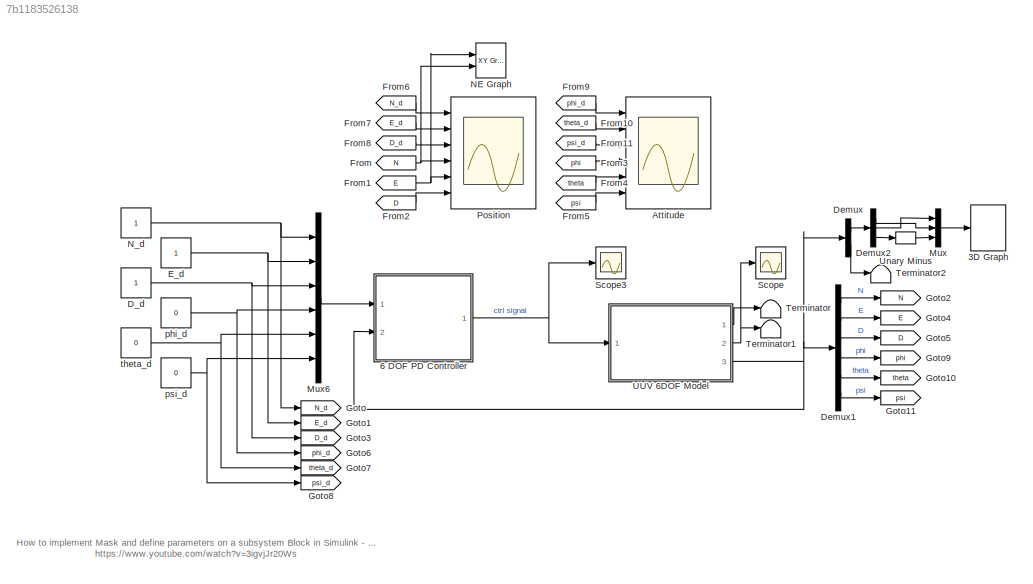
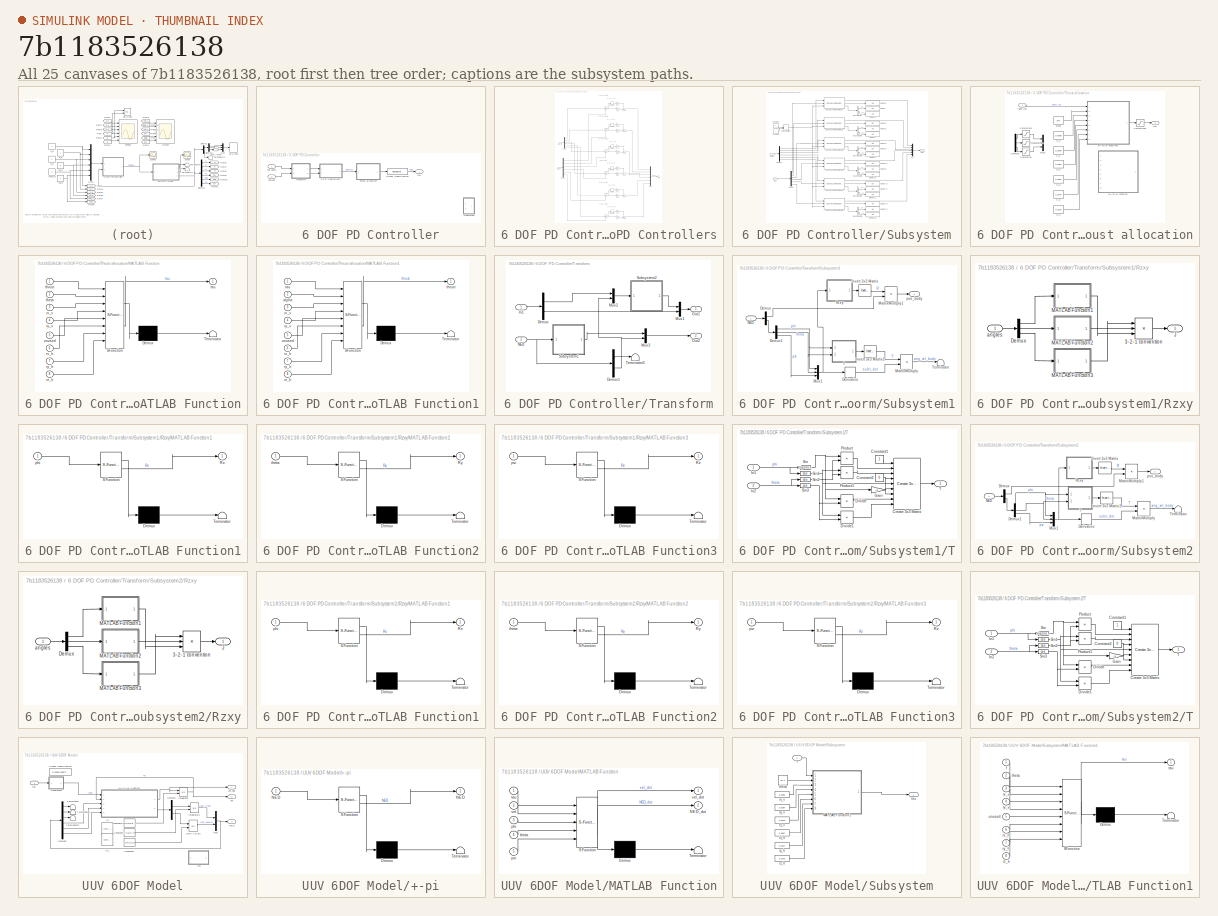
[diagram: thumbnail index - all 25 canvases of the model, root first then tree order]
MODEL slx_7b1183526138
KIND model
CONFIG AbsTol = auto
CONFIG EnableMultiTasking = off
CONFIG FixedStep = auto
CONFIG MaxStep = auto
CONFIG MinStep = auto
CONFIG RelTol = 1e-3
CONFIG SampleTimeConstraint = Unconstrained
CONFIG Solver = VariableStepAuto
CONFIG SolverName = VariableStepAuto
CONFIG StartTime = 0.0
CONFIG StopTime = 50
WORKSPACE source: mxarray member
WORKSPACE kd = 0
WORKSPACE kp = 0
BLOCK [S-Function] 3D Graph
  Commented = on
  CopyFcn = if exist('sfun3d','file'), sfun3d([],[],[],'CopyBlock'); end
  DeleteFcn = if exist('sfun3d','file'), sfun3d([],[],[],'DeleteBlock'); end
  EnableBusSupport = off
  FunctionName = sfun3d
  LoadFcn = if exist('sfun3d','file'), sfun3d([],[],[],'LoadBlock'); end
  NameChangeFcn = if exist('sfun3d','file'), sfun3d([],[],[],'NameChange'); end
  Parameters = ax,T,np,cp,gd,ls,mk,mx,hd,tb
  Ports = [1]
  SFcnIsStateOwnerBlock = off
  SFunctionDeploymentMode = off
BLOCK [SubSystem] 6 DOF PD Controller
  Ports = [2, 1]
  RequestExecContextInheritance = off
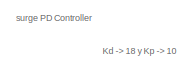
[diagram: 6 DOF PD Controller/6 PD Controllers - part 1/3, top center region]
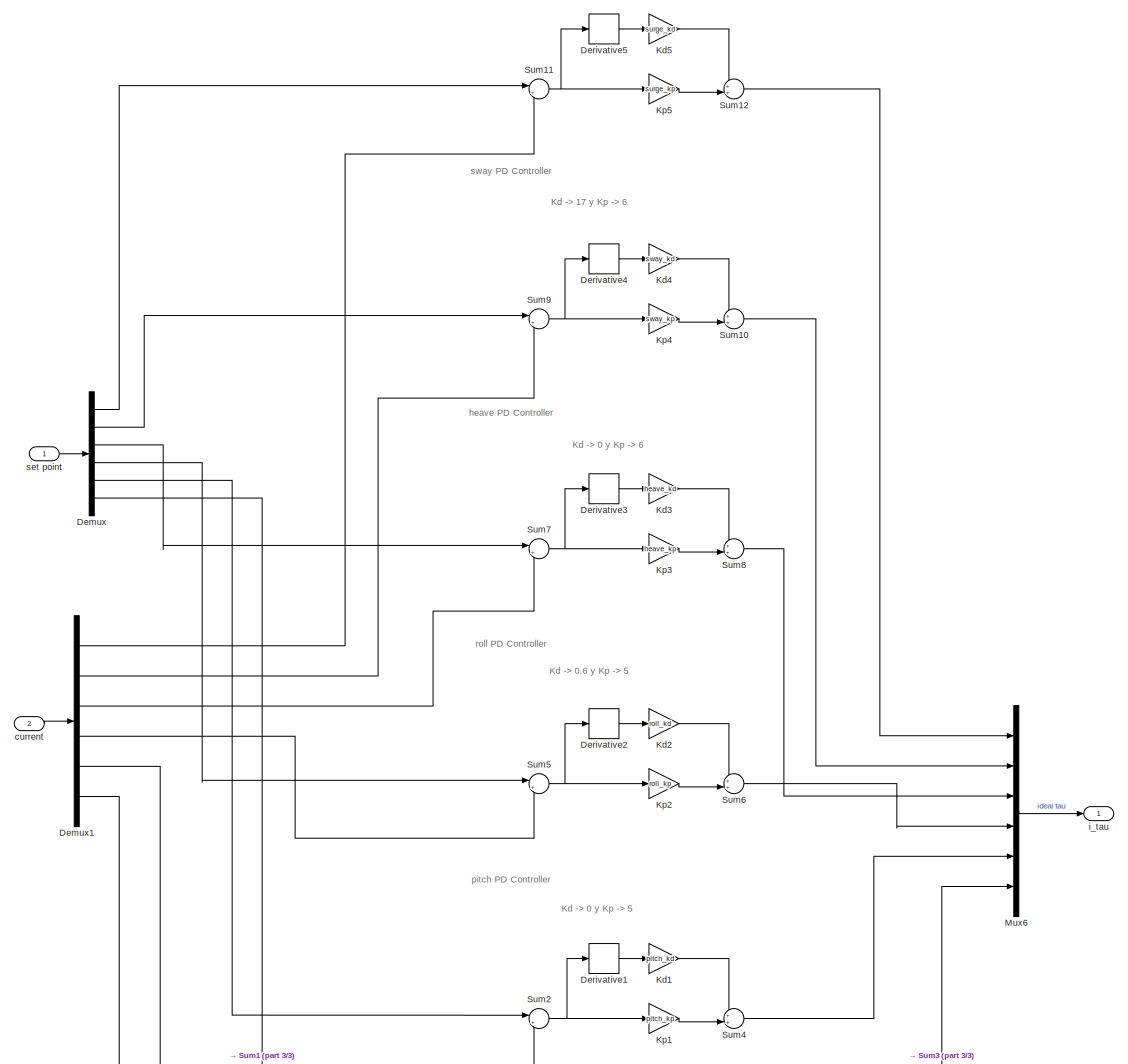
[diagram: 6 DOF PD Controller/6 PD Controllers - part 2/3, most of the canvas]
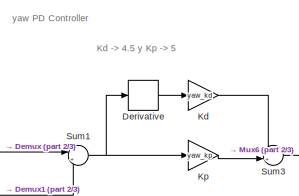
[diagram: 6 DOF PD Controller/6 PD Controllers - part 3/3, bottom center region]
BLOCK [SubSystem] 6 DOF PD Controller/6 PD Controllers
  Ports = [2, 1]
  RequestExecContextInheritance = off
BLOCK [Demux] 6 DOF PD Controller/6 PD Controllers/Demux
  Outputs = 6
  Ports = [1, 6]
BLOCK [Demux] 6 DOF PD Controller/6 PD Controllers/Demux1
  Outputs = 6
  Ports = [1, 6]
BLOCK [Derivative] 6 DOF PD Controller/6 PD Controllers/Derivative
BLOCK [Derivative] 6 DOF PD Controller/6 PD Controllers/Derivative1
BLOCK [Derivative] 6 DOF PD Controller/6 PD Controllers/Derivative2
BLOCK [Derivative] 6 DOF PD Controller/6 PD Controllers/Derivative3
BLOCK [Derivative] 6 DOF PD Controller/6 PD Controllers/Derivative4
BLOCK [Derivative] 6 DOF PD Controller/6 PD Controllers/Derivative5
BLOCK [Gain] 6 DOF PD Controller/6 PD Controllers/Kd
  Gain = yaw_kd
BLOCK [Gain] 6 DOF PD Controller/6 PD Controllers/Kd1
  Gain = pitch_kd
BLOCK [Gain] 6 DOF PD Controller/6 PD Controllers/Kd2
  Gain = roll_kd
BLOCK [Gain] 6 DOF PD Controller/6 PD Controllers/Kd3
  Gain = heave_kd
BLOCK [Gain] 6 DOF PD Controller/6 PD Controllers/Kd4
  Gain = sway_kd
BLOCK [Gain] 6 DOF PD Controller/6 PD Controllers/Kd5
  Gain = surge_kd
BLOCK [Gain] 6 DOF PD Controller/6 PD Controllers/Kp
  Gain = yaw_kp
BLOCK [Gain] 6 DOF PD Controller/6 PD Controllers/Kp1
  Gain = pitch_kp
BLOCK [Gain] 6 DOF PD Controller/6 PD Controllers/Kp2
  Gain = roll_kp
BLOCK [Gain] 6 DOF PD Controller/6 PD Controllers/Kp3
  Gain = heave_kp
BLOCK [Gain] 6 DOF PD Controller/6 PD Controllers/Kp4
  Gain = sway_kp
BLOCK [Gain] 6 DOF PD Controller/6 PD Controllers/Kp5
  Gain = surge_kp
BLOCK [Mux] 6 DOF PD Controller/6 PD Controllers/Mux6
  DisplayOption = bar
  Inputs = 6
  Ports = [6, 1]
BLOCK [Sum] 6 DOF PD Controller/6 PD Controllers/Sum1
  Inputs = |+-
  Ports = [2, 1]
BLOCK [Sum] 6 DOF PD Controller/6 PD Controllers/Sum10
  Inputs = ++|
  Ports = [2, 1]
BLOCK [Sum] 6 DOF PD Controller/6 PD Controllers/Sum11
  Inputs = |+-
  Ports = [2, 1]
BLOCK [Sum] 6 DOF PD Controller/6 PD Controllers/Sum12
  Inputs = ++|
  Ports = [2, 1]
BLOCK [Sum] 6 DOF PD Controller/6 PD Controllers/Sum2
  Inputs = |+-
  Ports = [2, 1]
BLOCK [Sum] 6 DOF PD Controller/6 PD Controllers/Sum3
  Inputs = ++|
  Ports = [2, 1]
BLOCK [Sum] 6 DOF PD Controller/6 PD Controllers/Sum4
  Inputs = ++|
  Ports = [2, 1]
BLOCK [Sum] 6 DOF PD Controller/6 PD Controllers/Sum5
  Inputs = |+-
  Ports = [2, 1]
BLOCK [Sum] 6 DOF PD Controller/6 PD Controllers/Sum6
  Inputs = ++|
  Ports = [2, 1]
BLOCK [Sum] 6 DOF PD Controller/6 PD Controllers/Sum7
  Inputs = |+-
  Ports = [2, 1]
BLOCK [Sum] 6 DOF PD Controller/6 PD Controllers/Sum8
  Inputs = ++|
  Ports = [2, 1]
BLOCK [Sum] 6 DOF PD Controller/6 PD Controllers/Sum9
  Inputs = |+-
  Ports = [2, 1]
BLOCK [Inport] 6 DOF PD Controller/6 PD Controllers/current
  Port = 2
BLOCK [Outport] 6 DOF PD Controller/6 PD Controllers/i_tau
BLOCK [Inport] 6 DOF PD Controller/6 PD Controllers/set point
BLOCK [SignalSpecification] 6 DOF PD Controller/Signal Specification
  Dimensions = 6
  VarSizeSig = No
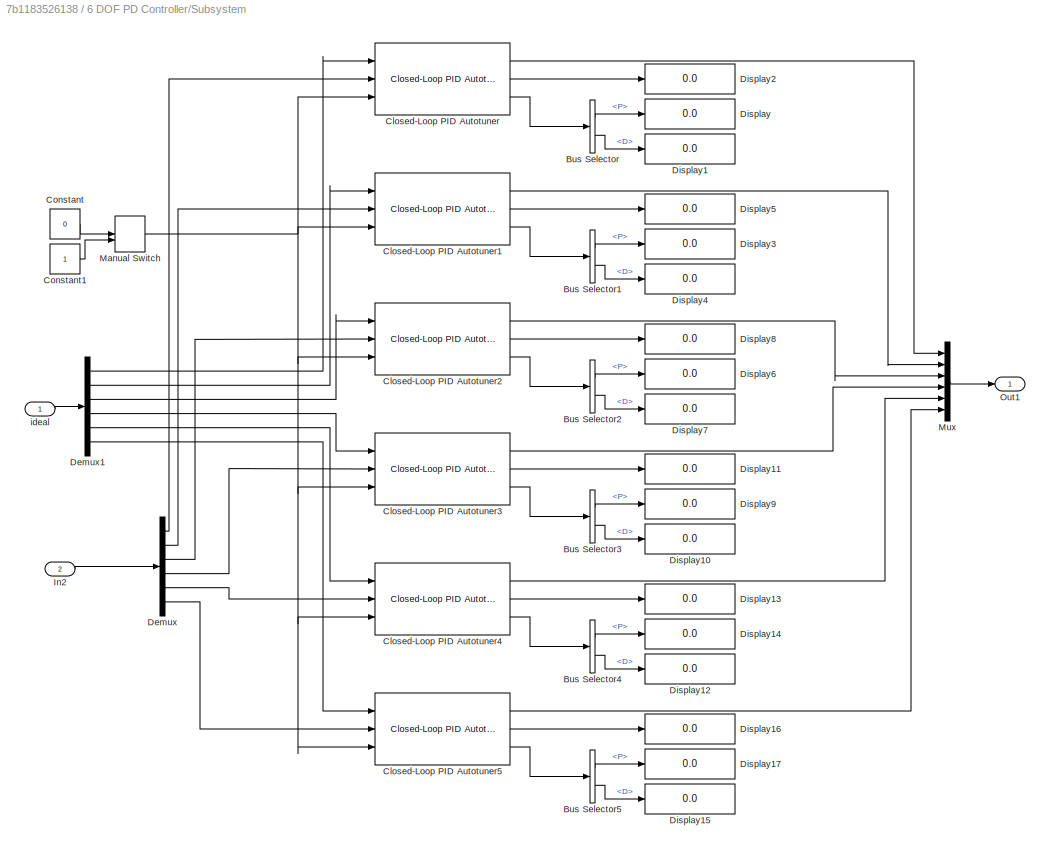
BLOCK [SubSystem] 6 DOF PD Controller/Subsystem
  Commented = on
  Ports = [2, 1]
  RequestExecContextInheritance = off
BLOCK [BusSelector] 6 DOF PD Controller/Subsystem/Bus Selector
  OutputSignals = P,D
  Ports = [1, 2]
BLOCK [BusSelector] 6 DOF PD Controller/Subsystem/Bus Selector1
  OutputSignals = P,D
  Ports = [1, 2]
BLOCK [BusSelector] 6 DOF PD Controller/Subsystem/Bus Selector2
  OutputSignals = P,D
  Ports = [1, 2]
BLOCK [BusSelector] 6 DOF PD Controller/Subsystem/Bus Selector3
  OutputSignals = P,D
  Ports = [1, 2]
BLOCK [BusSelector] 6 DOF PD Controller/Subsystem/Bus Selector4
  OutputSignals = P,D
  Ports = [1, 2]
BLOCK [BusSelector] 6 DOF PD Controller/Subsystem/Bus Selector5
  OutputSignals = P,D
  Ports = [1, 2]
BLOCK [Reference] 6 DOF PD Controller/Subsystem/Closed-Loop PID Autotuner  REF=slctrlblks/Closed-Loop PID Autotuner
  Ports = [3, 3]
  SourceBlock = slctrlblks/Closed-Loop PID Autotuner
  SourceProductBaseCode = SD
  SourceType = ClosedLoopOnlinePIDTuner
BLOCK [Reference] 6 DOF PD Controller/Subsystem/Closed-Loop PID Autotuner1  REF=slctrlblks/Closed-Loop PID Autotuner
  Ports = [3, 3]
  SourceBlock = slctrlblks/Closed-Loop PID Autotuner
  SourceProductBaseCode = SD
  SourceType = ClosedLoopOnlinePIDTuner
BLOCK [Reference] 6 DOF PD Controller/Subsystem/Closed-Loop PID Autotuner2  REF=slctrlblks/Closed-Loop PID Autotuner
  Ports = [3, 3]
  SourceBlock = slctrlblks/Closed-Loop PID Autotuner
  SourceProductBaseCode = SD
  SourceType = ClosedLoopOnlinePIDTuner
BLOCK [Reference] 6 DOF PD Controller/Subsystem/Closed-Loop PID Autotuner3  REF=slctrlblks/Closed-Loop PID Autotuner
  Ports = [3, 3]
  SourceBlock = slctrlblks/Closed-Loop PID Autotuner
  SourceProductBaseCode = SD
  SourceType = ClosedLoopOnlinePIDTuner
BLOCK [Reference] 6 DOF PD Controller/Subsystem/Closed-Loop PID Autotuner4  REF=slctrlblks/Closed-Loop PID Autotuner
  Ports = [3, 3]
  SourceBlock = slctrlblks/Closed-Loop PID Autotuner
  SourceProductBaseCode = SD
  SourceType = ClosedLoopOnlinePIDTuner
BLOCK [Reference] 6 DOF PD Controller/Subsystem/Closed-Loop PID Autotuner5  REF=slctrlblks/Closed-Loop PID Autotuner
  Ports = [3, 3]
  SourceBlock = slctrlblks/Closed-Loop PID Autotuner
  SourceProductBaseCode = SD
  SourceType = ClosedLoopOnlinePIDTuner
BLOCK [Constant] 6 DOF PD Controller/Subsystem/Constant
  Value = 0
BLOCK [Constant] 6 DOF PD Controller/Subsystem/Constant1
BLOCK [Demux] 6 DOF PD Controller/Subsystem/Demux
  Outputs = 6
  Ports = [1, 6]
BLOCK [Demux] 6 DOF PD Controller/Subsystem/Demux1
  Outputs = 6
  Ports = [1, 6]
BLOCK [Display] 6 DOF PD Controller/Subsystem/Display
  Decimation = 1
  Ports = [1]
BLOCK [Display] 6 DOF PD Controller/Subsystem/Display1
  Decimation = 1
  Ports = [1]
BLOCK [Display] 6 DOF PD Controller/Subsystem/Display10
  Decimation = 1
  Ports = [1]
BLOCK [Display] 6 DOF PD Controller/Subsystem/Display11
  Decimation = 1
  Ports = [1]
BLOCK [Display] 6 DOF PD Controller/Subsystem/Display12
  Decimation = 1
  Ports = [1]
BLOCK [Display] 6 DOF PD Controller/Subsystem/Display13
  Decimation = 1
  Ports = [1]
BLOCK [Display] 6 DOF PD Controller/Subsystem/Display14
  Decimation = 1
  Ports = [1]
BLOCK [Display] 6 DOF PD Controller/Subsystem/Display15
  Decimation = 1
  Ports = [1]
BLOCK [Display] 6 DOF PD Controller/Subsystem/Display16
  Decimation = 1
  Ports = [1]
BLOCK [Display] 6 DOF PD Controller/Subsystem/Display17
  Decimation = 1
  Ports = [1]
BLOCK [Display] 6 DOF PD Controller/Subsystem/Display2
  Decimation = 1
  Ports = [1]
BLOCK [Display] 6 DOF PD Controller/Subsystem/Display3
  Decimation = 1
  Ports = [1]
BLOCK [Display] 6 DOF PD Controller/Subsystem/Display4
  Decimation = 1
  Ports = [1]
BLOCK [Display] 6 DOF PD Controller/Subsystem/Display5
  Decimation = 1
  Ports = [1]
BLOCK [Display] 6 DOF PD Controller/Subsystem/Display6
  Decimation = 1
  Ports = [1]
BLOCK [Display] 6 DOF PD Controller/Subsystem/Display7
  Decimation = 1
  Ports = [1]
BLOCK [Display] 6 DOF PD Controller/Subsystem/Display8
  Decimation = 1
  Ports = [1]
BLOCK [Display] 6 DOF PD Controller/Subsystem/Display9
  Decimation = 1
  Ports = [1]
BLOCK [Inport] 6 DOF PD Controller/Subsystem/In2
  Port = 2
BLOCK [ManualSwitch] 6 DOF PD Controller/Subsystem/Manual Switch
  CurrentSetting = 0
BLOCK [Mux] 6 DOF PD Controller/Subsystem/Mux
  DisplayOption = bar
  Inputs = 6
  Ports = [6, 1]
BLOCK [Outport] 6 DOF PD Controller/Subsystem/Out1
BLOCK [Inport] 6 DOF PD Controller/Subsystem/ideal
BLOCK [SubSystem] 6 DOF PD Controller/Thrust allocation
  Ports = [1, 1]
  RequestExecContextInheritance = off
BLOCK [Demux] 6 DOF PD Controller/Thrust allocation/Demux6
  Commented = on
  Outputs = 3
  Ports = [1, 3]
BLOCK [SubSystem] 6 DOF PD Controller/Thrust allocation/MATLAB Function
  Commented = on
  ErrorFcn = Stateflow.Translate.translate
  PermitHierarchicalResolution = ExplicitOnly
  Ports = [8, 1]
  RequestExecContextInheritance = off
  SFBlockType = MATLAB Function
  TreatAsAtomicUnit = on
BLOCK [Demux] 6 DOF PD Controller/Thrust allocation/MATLAB Function/ Demux 
  Outputs = 1
  Ports = [1, 1]
BLOCK [S-Function] 6 DOF PD Controller/Thrust allocation/MATLAB Function/ SFunction 
  EnableBusSupport = on
  FunctionName = sf_sfun
  PortCounts = [8 2]
  Ports = [8, 2]
  SFcnIsStateOwnerBlock = off
  SFunctionDeploymentMode = off
  Tag = Stateflow S-Function 3
BLOCK [Terminator] 6 DOF PD Controller/Thrust allocation/MATLAB Function/ Terminator 
BLOCK [Inport] 6 DOF PD Controller/Thrust allocation/MATLAB Function/rx_h
  Port = 6
BLOCK [Inport] 6 DOF PD Controller/Thrust allocation/MATLAB Function/rx_v
  Port = 3
BLOCK [Inport] 6 DOF PD Controller/Thrust allocation/MATLAB Function/ry_h
  Port = 7
BLOCK [Inport] 6 DOF PD Controller/Thrust allocation/MATLAB Function/ry_v
  Port = 4
BLOCK [Inport] 6 DOF PD Controller/Thrust allocation/MATLAB Function/rz_h
  Port = 8
BLOCK [Outport] 6 DOF PD Controller/Thrust allocation/MATLAB Function/tau
BLOCK [Inport] 6 DOF PD Controller/Thrust allocation/MATLAB Function/theta
  Port = 2
BLOCK [Inport] 6 DOF PD Controller/Thrust allocation/MATLAB Function/thrust
BLOCK [Inport] 6 DOF PD Controller/Thrust allocation/MATLAB Function/unused
  Port = 5
BLOCK [SubSystem] 6 DOF PD Controller/Thrust allocation/MATLAB Function1
  ErrorFcn = Stateflow.Translate.translate
  PermitHierarchicalResolution = ExplicitOnly
  Ports = [8, 1]
  RequestExecContextInheritance = off
  SFBlockType = MATLAB Function
  TreatAsAtomicUnit = on
BLOCK [Demux] 6 DOF PD Controller/Thrust allocation/MATLAB Function1/ Demux 
  Outputs = 1
  Ports = [1, 1]
BLOCK [S-Function] 6 DOF PD Controller/Thrust allocation/MATLAB Function1/ SFunction 
  EnableBusSupport = on
  FunctionName = sf_sfun
  PortCounts = [8 2]
  Ports = [8, 2]
  SFcnIsStateOwnerBlock = off
  SFunctionDeploymentMode = off
  Tag = Stateflow S-Function 11
BLOCK [Terminator] 6 DOF PD Controller/Thrust allocation/MATLAB Function1/ Terminator 
BLOCK [Inport] 6 DOF PD Controller/Thrust allocation/MATLAB Function1/alpha
  Port = 2
BLOCK [Inport] 6 DOF PD Controller/Thrust allocation/MATLAB Function1/rx_h
  Port = 6
BLOCK [Inport] 6 DOF PD Controller/Thrust allocation/MATLAB Function1/rx_v
  Port = 3
BLOCK [Inport] 6 DOF PD Controller/Thrust allocation/MATLAB Function1/ry_h
  Port = 7
BLOCK [Inport] 6 DOF PD Controller/Thrust allocation/MATLAB Function1/ry_v
  Port = 4
BLOCK [Inport] 6 DOF PD Controller/Thrust allocation/MATLAB Function1/rz_h
  Port = 8
BLOCK [Inport] 6 DOF PD Controller/Thrust allocation/MATLAB Function1/tau
BLOCK [Outport] 6 DOF PD Controller/Thrust allocation/MATLAB Function1/thrust
BLOCK [Inport] 6 DOF PD Controller/Thrust allocation/MATLAB Function1/unused
  Port = 5
BLOCK [Mux] 6 DOF PD Controller/Thrust allocation/Mux2
  Commented = on
  DisplayOption = bar
  Inputs = 3
  Ports = [3, 1]
BLOCK [Saturate] 6 DOF PD Controller/Thrust allocation/Saturation
  Commented = on
  LowerLimit = -70
  UpperLimit = 70
BLOCK [Saturate] 6 DOF PD Controller/Thrust allocation/Saturation1
  Commented = on
  LowerLimit = -100
  UpperLimit = 100
BLOCK [Saturate] 6 DOF PD Controller/Thrust allocation/Saturation2
  Commented = on
  LowerLimit = -100
  UpperLimit = 100
BLOCK [Saturate] 6 DOF PD Controller/Thrust allocation/Saturation3
  LowerLimit = -35
  UpperLimit = 35
BLOCK [Constant] 6 DOF PD Controller/Thrust allocation/alpha
  Value = pi/4
BLOCK [Inport] 6 DOF PD Controller/Thrust allocation/ideal_tau
BLOCK [Constant] 6 DOF PD Controller/Thrust allocation/rx_h
  Value = 0.1867
BLOCK [Constant] 6 DOF PD Controller/Thrust allocation/rx_v
  Value = 0.0395
BLOCK [Constant] 6 DOF PD Controller/Thrust allocation/ry_h
  Value = 0.2347
BLOCK [Constant] 6 DOF PD Controller/Thrust allocation/ry_v
  Value = 0.2384
BLOCK [Constant] 6 DOF PD Controller/Thrust allocation/rz_h
  Value = 0.0175
BLOCK [Constant] 6 DOF PD Controller/Thrust allocation/rz_v
  Value = 0.0404
BLOCK [Outport] 6 DOF PD Controller/Thrust allocation/tau
BLOCK [SubSystem] 6 DOF PD Controller/Transform
  Ports = [2, 2]
  RequestExecContextInheritance = off
BLOCK [Demux] 6 DOF PD Controller/Transform/Demux
  Outputs = 2
  Ports = [1, 2]
BLOCK [Demux] 6 DOF PD Controller/Transform/Demux1
  Outputs = 2
  Ports = [1, 2]
BLOCK [Inport] 6 DOF PD Controller/Transform/In1
BLOCK [Mux] 6 DOF PD Controller/Transform/Mux1
  DisplayOption = bar
  Inputs = 2
  Ports = [2, 1]
BLOCK [Mux] 6 DOF PD Controller/Transform/Mux2
  DisplayOption = bar
  Inputs = 2
  Ports = [2, 1]
BLOCK [Mux] 6 DOF PD Controller/Transform/Mux3
  DisplayOption = bar
  Inputs = 2
  Ports = [2, 1]
BLOCK [Inport] 6 DOF PD Controller/Transform/NED
  Port = 2
BLOCK [Outport] 6 DOF PD Controller/Transform/Out1
BLOCK [Outport] 6 DOF PD Controller/Transform/Out2
  Port = 2
BLOCK [SubSystem] 6 DOF PD Controller/Transform/Subsystem1
  Ports = [1, 1]
  RequestExecContextInheritance = off
BLOCK [Demux] 6 DOF PD Controller/Transform/Subsystem1/Demux
  Outputs = 2
  Ports = [1, 2]
BLOCK [Demux] 6 DOF PD Controller/Transform/Subsystem1/Demux1
  Outputs = 3
  Ports = [1, 3]
BLOCK [Derivative] 6 DOF PD Controller/Transform/Subsystem1/Derivative
  Commented = on
BLOCK [Reference] 6 DOF PD Controller/Transform/Subsystem1/Invert 3x3 Matrix  REF=aerolibutil/Invert 
3x3 Matrix
  Ports = [1, 1]
  SourceBlock = aerolibutil/Invert \n3x3 Matrix
  SourceProductBaseCode = AE
  SourceType = Invert 3x3 Matrix
BLOCK [Reference] 6 DOF PD Controller/Transform/Subsystem1/Invert 3x3 Matrix1  REF=aerolibutil/Invert 
3x3 Matrix
  Commented = on
  Ports = [1, 1]
  SourceBlock = aerolibutil/Invert \n3x3 Matrix
  SourceProductBaseCode = AE
  SourceType = Invert 3x3 Matrix
BLOCK [Product] 6 DOF PD Controller/Transform/Subsystem1/MatrixMultiply
  Commented = on
  Multiplication = Matrix(*)
  Ports = [2, 1]
BLOCK [Product] 6 DOF PD Controller/Transform/Subsystem1/MatrixMultiply1
  Multiplication = Matrix(*)
  Ports = [2, 1]
BLOCK [Mux] 6 DOF PD Controller/Transform/Subsystem1/Mux1
  DisplayOption = bar
  Inputs = 3
  Ports = [3, 1]
BLOCK [Inport] 6 DOF PD Controller/Transform/Subsystem1/NED
BLOCK [SubSystem] 6 DOF PD Controller/Transform/Subsystem1/Rzxy
  Ports = [1, 1]
  RequestExecContextInheritance = off
BLOCK [Product] 6 DOF PD Controller/Transform/Subsystem1/Rzxy/3-2-1 convention
  Inputs = 3
  Multiplication = Matrix(*)
  Ports = [3, 1]
BLOCK [Demux] 6 DOF PD Controller/Transform/Subsystem1/Rzxy/Demux
  Outputs = 3
  Ports = [1, 3]
BLOCK [Outport] 6 DOF PD Controller/Transform/Subsystem1/Rzxy/J
BLOCK [SubSystem] 6 DOF PD Controller/Transform/Subsystem1/Rzxy/MATLAB Function1
  ErrorFcn = Stateflow.Translate.translate
  PermitHierarchicalResolution = ExplicitOnly
  Ports = [1, 1]
  RequestExecContextInheritance = off
  SFBlockType = MATLAB Function
  TreatAsAtomicUnit = on
BLOCK [Demux] 6 DOF PD Controller/Transform/Subsystem1/Rzxy/MATLAB Function1/ Demux 
  Outputs = 1
  Ports = [1, 1]
BLOCK [S-Function] 6 DOF PD Controller/Transform/Subsystem1/Rzxy/MATLAB Function1/ SFunction 
  EnableBusSupport = on
  FunctionName = sf_sfun
  PortCounts = [1 2]
  Ports = [1, 2]
  SFcnIsStateOwnerBlock = off
  SFunctionDeploymentMode = off
  Tag = Stateflow S-Function 8
BLOCK [Terminator] 6 DOF PD Controller/Transform/Subsystem1/Rzxy/MATLAB Function1/ Terminator 
BLOCK [Outport] 6 DOF PD Controller/Transform/Subsystem1/Rzxy/MATLAB Function1/Rx
BLOCK [Inport] 6 DOF PD Controller/Transform/Subsystem1/Rzxy/MATLAB Function1/phi
BLOCK [SubSystem] 6 DOF PD Controller/Transform/Subsystem1/Rzxy/MATLAB Function2
  ErrorFcn = Stateflow.Translate.translate
  PermitHierarchicalResolution = ExplicitOnly
  Ports = [1, 1]
  RequestExecContextInheritance = off
  SFBlockType = MATLAB Function
  TreatAsAtomicUnit = on
BLOCK [Demux] 6 DOF PD Controller/Transform/Subsystem1/Rzxy/MATLAB Function2/ Demux 
  Outputs = 1
  Ports = [1, 1]
BLOCK [S-Function] 6 DOF PD Controller/Transform/Subsystem1/Rzxy/MATLAB Function2/ SFunction 
  EnableBusSupport = on
  FunctionName = sf_sfun
  PortCounts = [1 2]
  Ports = [1, 2]
  SFcnIsStateOwnerBlock = off
  SFunctionDeploymentMode = off
  Tag = Stateflow S-Function 9
BLOCK [Terminator] 6 DOF PD Controller/Transform/Subsystem1/Rzxy/MATLAB Function2/ Terminator 
BLOCK [Outport] 6 DOF PD Controller/Transform/Subsystem1/Rzxy/MATLAB Function2/Ry
BLOCK [Inport] 6 DOF PD Controller/Transform/Subsystem1/Rzxy/MATLAB Function2/theta
BLOCK [SubSystem] 6 DOF PD Controller/Transform/Subsystem1/Rzxy/MATLAB Function3
  ErrorFcn = Stateflow.Translate.translate
  PermitHierarchicalResolution = ExplicitOnly
  Ports = [1, 1]
  RequestExecContextInheritance = off
  SFBlockType = MATLAB Function
  TreatAsAtomicUnit = on
BLOCK [Demux] 6 DOF PD Controller/Transform/Subsystem1/Rzxy/MATLAB Function3/ Demux 
  Outputs = 1
  Ports = [1, 1]
BLOCK [S-Function] 6 DOF PD Controller/Transform/Subsystem1/Rzxy/MATLAB Function3/ SFunction 
  EnableBusSupport = on
  FunctionName = sf_sfun
  PortCounts = [1 2]
  Ports = [1, 2]
  SFcnIsStateOwnerBlock = off
  SFunctionDeploymentMode = off
  Tag = Stateflow S-Function 10
BLOCK [Terminator] 6 DOF PD Controller/Transform/Subsystem1/Rzxy/MATLAB Function3/ Terminator 
BLOCK [Outport] 6 DOF PD Controller/Transform/Subsystem1/Rzxy/MATLAB Function3/Rz
BLOCK [Inport] 6 DOF PD Controller/Transform/Subsystem1/Rzxy/MATLAB Function3/psi
BLOCK [Inport] 6 DOF PD Controller/Transform/Subsystem1/Rzxy/angles
BLOCK [SubSystem] 6 DOF PD Controller/Transform/Subsystem1/T
  Commented = on
  Ports = [2, 1]
  RequestExecContextInheritance = off
BLOCK [Constant] 6 DOF PD Controller/Transform/Subsystem1/T/Constant1
BLOCK [Constant] 6 DOF PD Controller/Transform/Subsystem1/T/Constant2
  Value = 0
BLOCK [Reference] 6 DOF PD Controller/Transform/Subsystem1/T/Create 3x3 Matrix  REF=sharedutil/Create 3x3 Matrix
  Ports = [9, 1]
  SourceBlock = sharedutil/Create 3x3 Matrix
  SourceProductBaseCode = AE,PW,MT,VE,VP
  SourceType = Create 3x3 Matrix
BLOCK [Product] 6 DOF PD Controller/Transform/Subsystem1/T/Divide
  Inputs = */
  Ports = [2, 1]
BLOCK [Product] 6 DOF PD Controller/Transform/Subsystem1/T/Divide1
  Inputs = */
  Ports = [2, 1]
BLOCK [Gain] 6 DOF PD Controller/Transform/Subsystem1/T/Gain
  Gain = -1
BLOCK [Inport] 6 DOF PD Controller/Transform/Subsystem1/T/In1
BLOCK [Inport] 6 DOF PD Controller/Transform/Subsystem1/T/In2
  Port = 2
BLOCK [Product] 6 DOF PD Controller/Transform/Subsystem1/T/Product
  Ports = [2, 1]
BLOCK [Product] 6 DOF PD Controller/Transform/Subsystem1/T/Product1
  Ports = [2, 1]
BLOCK [Trigonometry] 6 DOF PD Controller/Transform/Subsystem1/T/Sin
  Ports = [1, 1]
BLOCK [Trigonometry] 6 DOF PD Controller/Transform/Subsystem1/T/Sin1
  Operator = cos
  Ports = [1, 1]
BLOCK [Trigonometry] 6 DOF PD Controller/Transform/Subsystem1/T/Sin2
  Operator = tan
  Ports = [1, 1]
BLOCK [Trigonometry] 6 DOF PD Controller/Transform/Subsystem1/T/Sin3
  Operator = cos
  Ports = [1, 1]
BLOCK [Outport] 6 DOF PD Controller/Transform/Subsystem1/T/T
BLOCK [Terminator] 6 DOF PD Controller/Transform/Subsystem1/Terminator
  Commented = on
BLOCK [Outport] 6 DOF PD Controller/Transform/Subsystem1/pos_body
BLOCK [SubSystem] 6 DOF PD Controller/Transform/Subsystem2
  Ports = [1, 1]
  RequestExecContextInheritance = off
BLOCK [Demux] 6 DOF PD Controller/Transform/Subsystem2/Demux
  Outputs = 2
  Ports = [1, 2]
BLOCK [Demux] 6 DOF PD Controller/Transform/Subsystem2/Demux1
  Outputs = 3
  Ports = [1, 3]
BLOCK [Derivative] 6 DOF PD Controller/Transform/Subsystem2/Derivative
  Commented = on
BLOCK [Reference] 6 DOF PD Controller/Transform/Subsystem2/Invert 3x3 Matrix  REF=aerolibutil/Invert 
3x3 Matrix
  Ports = [1, 1]
  SourceBlock = aerolibutil/Invert \n3x3 Matrix
  SourceProductBaseCode = AE
  SourceType = Invert 3x3 Matrix
BLOCK [Reference] 6 DOF PD Controller/Transform/Subsystem2/Invert 3x3 Matrix1  REF=aerolibutil/Invert 
3x3 Matrix
  Commented = on
  Ports = [1, 1]
  SourceBlock = aerolibutil/Invert \n3x3 Matrix
  SourceProductBaseCode = AE
  SourceType = Invert 3x3 Matrix
BLOCK [Product] 6 DOF PD Controller/Transform/Subsystem2/MatrixMultiply
  Commented = on
  Multiplication = Matrix(*)
  Ports = [2, 1]
BLOCK [Product] 6 DOF PD Controller/Transform/Subsystem2/MatrixMultiply1
  Multiplication = Matrix(*)
  Ports = [2, 1]
BLOCK [Mux] 6 DOF PD Controller/Transform/Subsystem2/Mux1
  DisplayOption = bar
  Inputs = 3
  Ports = [3, 1]
BLOCK [Inport] 6 DOF PD Controller/Transform/Subsystem2/NED
BLOCK [SubSystem] 6 DOF PD Controller/Transform/Subsystem2/Rzxy
  Ports = [1, 1]
  RequestExecContextInheritance = off
BLOCK [Product] 6 DOF PD Controller/Transform/Subsystem2/Rzxy/3-2-1 convention
  Inputs = 3
  Multiplication = Matrix(*)
  Ports = [3, 1]
BLOCK [Demux] 6 DOF PD Controller/Transform/Subsystem2/Rzxy/Demux
  Outputs = 3
  Ports = [1, 3]
BLOCK [Outport] 6 DOF PD Controller/Transform/Subsystem2/Rzxy/J
BLOCK [SubSystem] 6 DOF PD Controller/Transform/Subsystem2/Rzxy/MATLAB Function1
  ErrorFcn = Stateflow.Translate.translate
  PermitHierarchicalResolution = ExplicitOnly
  Ports = [1, 1]
  RequestExecContextInheritance = off
  SFBlockType = MATLAB Function
  TreatAsAtomicUnit = on
BLOCK [Demux] 6 DOF PD Controller/Transform/Subsystem2/Rzxy/MATLAB Function1/ Demux 
  Outputs = 1
  Ports = [1, 1]
BLOCK [S-Function] 6 DOF PD Controller/Transform/Subsystem2/Rzxy/MATLAB Function1/ SFunction 
  EnableBusSupport = on
  FunctionName = sf_sfun
  PortCounts = [1 2]
  Ports = [1, 2]
  SFcnIsStateOwnerBlock = off
  SFunctionDeploymentMode = off
  Tag = Stateflow S-Function 1
BLOCK [Terminator] 6 DOF PD Controller/Transform/Subsystem2/Rzxy/MATLAB Function1/ Terminator 
BLOCK [Outport] 6 DOF PD Controller/Transform/Subsystem2/Rzxy/MATLAB Function1/Rx
BLOCK [Inport] 6 DOF PD Controller/Transform/Subsystem2/Rzxy/MATLAB Function1/phi
BLOCK [SubSystem] 6 DOF PD Controller/Transform/Subsystem2/Rzxy/MATLAB Function2
  ErrorFcn = Stateflow.Translate.translate
  PermitHierarchicalResolution = ExplicitOnly
  Ports = [1, 1]
  RequestExecContextInheritance = off
  SFBlockType = MATLAB Function
  TreatAsAtomicUnit = on
BLOCK [Demux] 6 DOF PD Controller/Transform/Subsystem2/Rzxy/MATLAB Function2/ Demux 
  Outputs = 1
  Ports = [1, 1]
BLOCK [S-Function] 6 DOF PD Controller/Transform/Subsystem2/Rzxy/MATLAB Function2/ SFunction 
  EnableBusSupport = on
  FunctionName = sf_sfun
  PortCounts = [1 2]
  Ports = [1, 2]
  SFcnIsStateOwnerBlock = off
  SFunctionDeploymentMode = off
  Tag = Stateflow S-Function 6
BLOCK [Terminator] 6 DOF PD Controller/Transform/Subsystem2/Rzxy/MATLAB Function2/ Terminator 
BLOCK [Outport] 6 DOF PD Controller/Transform/Subsystem2/Rzxy/MATLAB Function2/Ry
BLOCK [Inport] 6 DOF PD Controller/Transform/Subsystem2/Rzxy/MATLAB Function2/theta
BLOCK [SubSystem] 6 DOF PD Controller/Transform/Subsystem2/Rzxy/MATLAB Function3
  ErrorFcn = Stateflow.Translate.translate
  PermitHierarchicalResolution = ExplicitOnly
  Ports = [1, 1]
  RequestExecContextInheritance = off
  SFBlockType = MATLAB Function
  TreatAsAtomicUnit = on
BLOCK [Demux] 6 DOF PD Controller/Transform/Subsystem2/Rzxy/MATLAB Function3/ Demux 
  Outputs = 1
  Ports = [1, 1]
BLOCK [S-Function] 6 DOF PD Controller/Transform/Subsystem2/Rzxy/MATLAB Function3/ SFunction 
  EnableBusSupport = on
  FunctionName = sf_sfun
  PortCounts = [1 2]
  Ports = [1, 2]
  SFcnIsStateOwnerBlock = off
  SFunctionDeploymentMode = off
  Tag = Stateflow S-Function 7
BLOCK [Terminator] 6 DOF PD Controller/Transform/Subsystem2/Rzxy/MATLAB Function3/ Terminator 
BLOCK [Outport] 6 DOF PD Controller/Transform/Subsystem2/Rzxy/MATLAB Function3/Rz
BLOCK [Inport] 6 DOF PD Controller/Transform/Subsystem2/Rzxy/MATLAB Function3/psi
BLOCK [Inport] 6 DOF PD Controller/Transform/Subsystem2/Rzxy/angles
BLOCK [SubSystem] 6 DOF PD Controller/Transform/Subsystem2/T
  Commented = on
  Ports = [2, 1]
  RequestExecContextInheritance = off
BLOCK [Constant] 6 DOF PD Controller/Transform/Subsystem2/T/Constant1
BLOCK [Constant] 6 DOF PD Controller/Transform/Subsystem2/T/Constant2
  Value = 0
BLOCK [Reference] 6 DOF PD Controller/Transform/Subsystem2/T/Create 3x3 Matrix  REF=sharedutil/Create 3x3 Matrix
  Ports = [9, 1]
  SourceBlock = sharedutil/Create 3x3 Matrix
  SourceProductBaseCode = AE,PW,MT,VE,VP
  SourceType = Create 3x3 Matrix
BLOCK [Product] 6 DOF PD Controller/Transform/Subsystem2/T/Divide
  Inputs = */
  Ports = [2, 1]
BLOCK [Product] 6 DOF PD Controller/Transform/Subsystem2/T/Divide1
  Inputs = */
  Ports = [2, 1]
BLOCK [Gain] 6 DOF PD Controller/Transform/Subsystem2/T/Gain
  Gain = -1
BLOCK [Inport] 6 DOF PD Controller/Transform/Subsystem2/T/In1
BLOCK [Inport] 6 DOF PD Controller/Transform/Subsystem2/T/In2
  Port = 2
BLOCK [Product] 6 DOF PD Controller/Transform/Subsystem2/T/Product
  Ports = [2, 1]
BLOCK [Product] 6 DOF PD Controller/Transform/Subsystem2/T/Product1
  Ports = [2, 1]
BLOCK [Trigonometry] 6 DOF PD Controller/Transform/Subsystem2/T/Sin
  Ports = [1, 1]
BLOCK [Trigonometry] 6 DOF PD Controller/Transform/Subsystem2/T/Sin1
  Operator = cos
  Ports = [1, 1]
BLOCK [Trigonometry] 6 DOF PD Controller/Transform/Subsystem2/T/Sin2
  Operator = tan
  Ports = [1, 1]
BLOCK [Trigonometry] 6 DOF PD Controller/Transform/Subsystem2/T/Sin3
  Operator = cos
  Ports = [1, 1]
BLOCK [Outport] 6 DOF PD Controller/Transform/Subsystem2/T/T
BLOCK [Terminator] 6 DOF PD Controller/Transform/Subsystem2/Terminator
  Commented = on
BLOCK [Outport] 6 DOF PD Controller/Transform/Subsystem2/pos_body
BLOCK [Terminator] 6 DOF PD Controller/Transform/Terminator5
BLOCK [Inport] 6 DOF PD Controller/current
  Port = 2
BLOCK [Inport] 6 DOF PD Controller/set point
BLOCK [Outport] 6 DOF PD Controller/tau
BLOCK [Scope] Attitude
  Floating = off
  NumInputPorts = 6
  Ports = [6]
  ScopeSpecificationString = Simulink.scopes.TimeScopeBlockCfg('CurrentConfiguration', extmgr.ConfigurationSet(extmgr.Configuration('Core','General UI',true),extmgr.Configuration('Core','Source UI',true),extmgr.Configuration('Sources','WiredSimulink',true,'DataLoggingVariableName','ScopeData1'),extmgr.Configuration('Visuals','Time Domain',true,'SerializedDisplays',{struct('MinYLimReal','-0.54506','MaxYLimReal','1.17167','YLab...<+1605ch>
BLOCK [Constant] D_d
BLOCK [Demux] Demux
  Commented = on
  Outputs = 2
  Ports = [1, 2]
BLOCK [Demux] Demux1
  Outputs = 6
  Ports = [1, 6]
BLOCK [Demux] Demux2
  Commented = on
  Outputs = 3
  Ports = [1, 3]
BLOCK [Constant] E_d
BLOCK [From] From
  GotoTag = N
BLOCK [From] From1
  GotoTag = E
BLOCK [From] From10
  GotoTag = theta_d
BLOCK [From] From11
  GotoTag = psi_d
BLOCK [From] From2
  GotoTag = D
BLOCK [From] From3
  GotoTag = phi
BLOCK [From] From4
  GotoTag = theta
BLOCK [From] From5
  GotoTag = psi
BLOCK [From] From6
  GotoTag = N_d
BLOCK [From] From7
  GotoTag = E_d
BLOCK [From] From8
  GotoTag = D_d
BLOCK [From] From9
  GotoTag = phi_d
BLOCK [Goto] Goto
  GotoTag = N_d
BLOCK [Goto] Goto1
  GotoTag = E_d
BLOCK [Goto] Goto10
  GotoTag = theta
BLOCK [Goto] Goto11
  GotoTag = psi
BLOCK [Goto] Goto2
  GotoTag = N
BLOCK [Goto] Goto3
  GotoTag = D_d
BLOCK [Goto] Goto4
  GotoTag = E
BLOCK [Goto] Goto5
  GotoTag = D
BLOCK [Goto] Goto6
  GotoTag = phi_d
BLOCK [Goto] Goto7
  GotoTag = theta_d
BLOCK [Goto] Goto8
  GotoTag = psi_d
BLOCK [Goto] Goto9
  GotoTag = phi
BLOCK [Mux] Mux
  Commented = on
  DisplayOption = bar
  Inputs = 3
  Ports = [3, 1]
BLOCK [Mux] Mux6
  DisplayOption = bar
  Inputs = 6
  Ports = [6, 1]
BLOCK [Reference] NE Graph  REF=simulink/Sinks/XY Graph
  Ports = [2]
  SourceBlock = simulink/Sinks/XY Graph
  SourceProductBaseCode = SL
  SourceType = XY scope.
BLOCK [Constant] N_d
BLOCK [Scope] Position
  Floating = off
  NumInputPorts = 6
  Ports = [6]
  ScopeSpecificationString = Simulink.scopes.TimeScopeBlockCfg('CurrentConfiguration', extmgr.ConfigurationSet(extmgr.Configuration('Core','General UI',true),extmgr.Configuration('Core','Source UI',true),extmgr.Configuration('Sources','WiredSimulink',true),extmgr.Configuration('Visuals','Time Domain',true,'SerializedDisplays',{struct('MinYLimReal','-3.875','MaxYLimReal','4.875','YLabelReal','','MinYLimMag','0.00000','MaxYLimM...<+1555ch>
BLOCK [Scope] Scope
  Floating = off
  NumInputPorts = 1
  Ports = [1]
  ScopeSpecificationString = Simulink.scopes.TimeScopeBlockCfg('CurrentConfiguration', extmgr.ConfigurationSet(extmgr.Configuration('Core','General UI',true),extmgr.Configuration('Core','Source UI',true),extmgr.Configuration('Sources','WiredSimulink',true,'DataLoggingVariableName','ScopeData1'),extmgr.Configuration('Visuals','Time Domain',true,'SerializedDisplays',{struct('MinYLimReal','-3.35172','MaxYLimReal','3.13233','YLab...<+1715ch>
BLOCK [Scope] Scope3
  Floating = off
  NumInputPorts = 1
  Ports = [1]
  ScopeSpecificationString = Simulink.scopes.TimeScopeBlockCfg('CurrentConfiguration', extmgr.ConfigurationSet(extmgr.Configuration('Core','General UI',true),extmgr.Configuration('Core','Source UI',true),extmgr.Configuration('Sources','WiredSimulink',true,'DataLoggingVariableName','ScopeData1'),extmgr.Configuration('Visuals','Time Domain',true,'SerializedDisplays',{struct('MinYLimReal','-43.75','MaxYLimReal','43.75','YLabelRe...<+1596ch>
BLOCK [Terminator] Terminator
BLOCK [Terminator] Terminator1
BLOCK [Terminator] Terminator2
  Commented = on
BLOCK [SubSystem] UUV 6DOF Model
  Ports = [1, 3]
  RequestExecContextInheritance = off
BLOCK [SubSystem] UUV 6DOF Model/+-pi
  Commented = on
  ErrorFcn = Stateflow.Translate.translate
  PermitHierarchicalResolution = ExplicitOnly
  Ports = [1, 1]
  RequestExecContextInheritance = off
  SFBlockType = MATLAB Function
  TreatAsAtomicUnit = on
BLOCK [Demux] UUV 6DOF Model/+-pi/ Demux 
  Outputs = 1
  Ports = [1, 1]
BLOCK [S-Function] UUV 6DOF Model/+-pi/ SFunction 
  EnableBusSupport = on
  FunctionName = sf_sfun
  PortCounts = [1 2]
  Ports = [1, 2]
  SFcnIsStateOwnerBlock = off
  SFunctionDeploymentMode = off
  Tag = Stateflow S-Function 2
BLOCK [Terminator] UUV 6DOF Model/+-pi/ Terminator 
BLOCK [Outport] UUV 6DOF Model/+-pi/NED
BLOCK [Inport] UUV 6DOF Model/+-pi/NED 
BLOCK [Constant] UUV 6DOF Model/Constant
  Value = [-0.5;4;-3]
BLOCK [Constant] UUV 6DOF Model/Constant1
  Value = [0.5;0.2;1]
BLOCK [Constant] UUV 6DOF Model/Constant2
  Value = [0;0;0;0;0;0]
BLOCK [Demux] UUV 6DOF Model/Demux1
  Outputs = 2
  Ports = [1, 2]
BLOCK [Demux] UUV 6DOF Model/Demux3
  Outputs = 6
  Ports = [1, 6]
BLOCK [InitialCondition] UUV 6DOF Model/IC
  Commented = on
  Value = [0;0;0;0;0;0]
BLOCK [InitialCondition] UUV 6DOF Model/IC1
  Commented = on
  NameLocation = top
  Value = [1;1;1;1;1;1]
BLOCK [Integrator] UUV 6DOF Model/Integrator
  InitialConditionSource = external
  Ports = [2, 1]
BLOCK [Integrator] UUV 6DOF Model/Integrator1
  InitialConditionSource = external
  Ports = [2, 1]
BLOCK [Integrator] UUV 6DOF Model/Limit [-pi,pi]
  InitialConditionSource = external
  Ports = [2, 1]
  WrapState = on
BLOCK [SubSystem] UUV 6DOF Model/MATLAB Function
  ErrorFcn = Stateflow.Translate.translate
  PermitHierarchicalResolution = ExplicitOnly
  Ports = [5, 2]
  RequestExecContextInheritance = off
  SFBlockType = MATLAB Function
  TreatAsAtomicUnit = on
BLOCK [Demux] UUV 6DOF Model/MATLAB Function/ Demux 
  Outputs = 1
  Ports = [1, 1]
BLOCK [S-Function] UUV 6DOF Model/MATLAB Function/ SFunction 
  EnableBusSupport = on
  FunctionName = sf_sfun
  PortCounts = [5 3]
  Ports = [5, 3]
  SFcnIsStateOwnerBlock = off
  SFunctionDeploymentMode = off
  Tag = Stateflow S-Function 4
BLOCK [Terminator] UUV 6DOF Model/MATLAB Function/ Terminator 
BLOCK [Outport] UUV 6DOF Model/MATLAB Function/NED_dot
  Port = 2
BLOCK [Inport] UUV 6DOF Model/MATLAB Function/phi
  Port = 3
BLOCK [Inport] UUV 6DOF Model/MATLAB Function/psi
  Port = 5
BLOCK [Inport] UUV 6DOF Model/MATLAB Function/tau
BLOCK [Inport] UUV 6DOF Model/MATLAB Function/theta
  Port = 4
BLOCK [Inport] UUV 6DOF Model/MATLAB Function/vel
  Port = 2
BLOCK [Outport] UUV 6DOF Model/MATLAB Function/vel_dot
BLOCK [Mux] UUV 6DOF Model/Mux
  DisplayOption = bar
  Inputs = 2
  Ports = [2, 1]
BLOCK [Outport] UUV 6DOF Model/NED
  Port = 3
BLOCK [SignalSpecification] UUV 6DOF Model/Signal Specification
  Commented = on
  Dimensions = 6
  VarSizeSig = No
BLOCK [SubSystem] UUV 6DOF Model/Subsystem
  Ports = [1, 1]
  RequestExecContextInheritance = off
BLOCK [SubSystem] UUV 6DOF Model/Subsystem/MATLAB Function1
  ErrorFcn = Stateflow.Translate.translate
  PermitHierarchicalResolution = ExplicitOnly
  Ports = [8, 1]
  RequestExecContextInheritance = off
  SFBlockType = MATLAB Function
  TreatAsAtomicUnit = on
BLOCK [Demux] UUV 6DOF Model/Subsystem/MATLAB Function1/ Demux 
  Outputs = 1
  Ports = [1, 1]
BLOCK [S-Function] UUV 6DOF Model/Subsystem/MATLAB Function1/ SFunction 
  EnableBusSupport = on
  FunctionName = sf_sfun
  PortCounts = [8 2]
  Ports = [8, 2]
  SFcnIsStateOwnerBlock = off
  SFunctionDeploymentMode = off
  Tag = Stateflow S-Function 5
BLOCK [Terminator] UUV 6DOF Model/Subsystem/MATLAB Function1/ Terminator 
BLOCK [Inport] UUV 6DOF Model/Subsystem/MATLAB Function1/f
BLOCK [Inport] UUV 6DOF Model/Subsystem/MATLAB Function1/rx_h
  Port = 6
BLOCK [Inport] UUV 6DOF Model/Subsystem/MATLAB Function1/rx_v
  Port = 3
BLOCK [Inport] UUV 6DOF Model/Subsystem/MATLAB Function1/ry_h
  Port = 7
BLOCK [Inport] UUV 6DOF Model/Subsystem/MATLAB Function1/ry_v
  Port = 4
BLOCK [Inport] UUV 6DOF Model/Subsystem/MATLAB Function1/rz_h
  Port = 8
BLOCK [Outport] UUV 6DOF Model/Subsystem/MATLAB Function1/tau
BLOCK [Inport] UUV 6DOF Model/Subsystem/MATLAB Function1/theta
  Port = 2
BLOCK [Inport] UUV 6DOF Model/Subsystem/MATLAB Function1/unused
  Port = 5
BLOCK [Inport] UUV 6DOF Model/Subsystem/f
BLOCK [Constant] UUV 6DOF Model/Subsystem/rx_h
  Value = 0.1867
BLOCK [Constant] UUV 6DOF Model/Subsystem/rx_v
  Value = 0.0395
BLOCK [Constant] UUV 6DOF Model/Subsystem/ry_h
  Value = 0.2347
BLOCK [Constant] UUV 6DOF Model/Subsystem/ry_v
  Value = 0.2384
BLOCK [Constant] UUV 6DOF Model/Subsystem/rz_h
  Value = 0.0175
BLOCK [Constant] UUV 6DOF Model/Subsystem/rz_v
  Value = 0.0404
BLOCK [Outport] UUV 6DOF Model/Subsystem/tau
BLOCK [Constant] UUV 6DOF Model/Subsystem/theta
  Value = pi/4
BLOCK [Terminator] UUV 6DOF Model/Terminator
BLOCK [Terminator] UUV 6DOF Model/Terminator1
BLOCK [Terminator] UUV 6DOF Model/Terminator2
BLOCK [Inport] UUV 6DOF Model/tau
BLOCK [Outport] UUV 6DOF Model/vel
  Port = 2
BLOCK [Outport] UUV 6DOF Model/vel_dot
BLOCK [UnaryMinus] Unary Minus
  Commented = on
BLOCK [Constant] phi_d
  Value = 0
BLOCK [Constant] psi_d
  Value = 0
BLOCK [Constant] theta_d
  Value = 0
ANNOTATION (root): How to implement Mask and define parameters on a subsystem Block in Simulink - MATLAB? https://www.youtube.com/watch?v=3igvjJr20Ws
ANNOTATION 6 DOF PD Controller/6 PD Controllers: Kd -> 0 y Kp -> 5
ANNOTATION 6 DOF PD Controller/6 PD Controllers: Kd -> 0 y Kp -> 6
ANNOTATION 6 DOF PD Controller/6 PD Controllers: Kd -> 0.6 y Kp -> 5
ANNOTATION 6 DOF PD Controller/6 PD Controllers: Kd -> 17 y Kp -> 6
ANNOTATION 6 DOF PD Controller/6 PD Controllers: Kd -> 18 y Kp -> 10
ANNOTATION 6 DOF PD Controller/6 PD Controllers: Kd -> 4.5 y Kp -> 5
ANNOTATION 6 DOF PD Controller/6 PD Controllers: heave PD Controller
ANNOTATION 6 DOF PD Controller/6 PD Controllers: pitch PD Controller
ANNOTATION 6 DOF PD Controller/6 PD Controllers: roll PD Controller
ANNOTATION 6 DOF PD Controller/6 PD Controllers: surge PD Controller
ANNOTATION 6 DOF PD Controller/6 PD Controllers: sway PD Controller
ANNOTATION 6 DOF PD Controller/6 PD Controllers: yaw PD Controller
LINE 6 DOF PD Controller/6 PD Controllers/Demux1:1 -> 6 DOF PD Controller/6 PD Controllers/Sum11:2
LINE 6 DOF PD Controller/6 PD Controllers/Demux1:2 -> 6 DOF PD Controller/6 PD Controllers/Sum9:2
LINE 6 DOF PD Controller/6 PD Controllers/Demux1:3 -> 6 DOF PD Controller/6 PD Controllers/Sum7:2
LINE 6 DOF PD Controller/6 PD Controllers/Demux1:4 -> 6 DOF PD Controller/6 PD Controllers/Sum5:2
LINE 6 DOF PD Controller/6 PD Controllers/Demux1:5 -> 6 DOF PD Controller/6 PD Controllers/Sum2:2
LINE 6 DOF PD Controller/6 PD Controllers/Demux1:6 -> 6 DOF PD Controller/6 PD Controllers/Sum1:2
LINE 6 DOF PD Controller/6 PD Controllers/Demux:1 -> 6 DOF PD Controller/6 PD Controllers/Sum11:1
LINE 6 DOF PD Controller/6 PD Controllers/Demux:2 -> 6 DOF PD Controller/6 PD Controllers/Sum9:1
LINE 6 DOF PD Controller/6 PD Controllers/Demux:3 -> 6 DOF PD Controller/6 PD Controllers/Sum7:1
LINE 6 DOF PD Controller/6 PD Controllers/Demux:4 -> 6 DOF PD Controller/6 PD Controllers/Sum5:1
LINE 6 DOF PD Controller/6 PD Controllers/Demux:5 -> 6 DOF PD Controller/6 PD Controllers/Sum2:1
LINE 6 DOF PD Controller/6 PD Controllers/Demux:6 -> 6 DOF PD Controller/6 PD Controllers/Sum1:1
LINE 6 DOF PD Controller/6 PD Controllers/Derivative1:1 -> 6 DOF PD Controller/6 PD Controllers/Kd1:1
LINE 6 DOF PD Controller/6 PD Controllers/Derivative2:1 -> 6 DOF PD Controller/6 PD Controllers/Kd2:1
LINE 6 DOF PD Controller/6 PD Controllers/Derivative3:1 -> 6 DOF PD Controller/6 PD Controllers/Kd3:1
LINE 6 DOF PD Controller/6 PD Controllers/Derivative4:1 -> 6 DOF PD Controller/6 PD Controllers/Kd4:1
LINE 6 DOF PD Controller/6 PD Controllers/Derivative5:1 -> 6 DOF PD Controller/6 PD Controllers/Kd5:1
LINE 6 DOF PD Controller/6 PD Controllers/Derivative:1 -> 6 DOF PD Controller/6 PD Controllers/Kd:1
LINE 6 DOF PD Controller/6 PD Controllers/Kd1:1 -> 6 DOF PD Controller/6 PD Controllers/Sum4:1
LINE 6 DOF PD Controller/6 PD Controllers/Kd2:1 -> 6 DOF PD Controller/6 PD Controllers/Sum6:1
LINE 6 DOF PD Controller/6 PD Controllers/Kd3:1 -> 6 DOF PD Controller/6 PD Controllers/Sum8:1
LINE 6 DOF PD Controller/6 PD Controllers/Kd4:1 -> 6 DOF PD Controller/6 PD Controllers/Sum10:1
LINE 6 DOF PD Controller/6 PD Controllers/Kd5:1 -> 6 DOF PD Controller/6 PD Controllers/Sum12:1
LINE 6 DOF PD Controller/6 PD Controllers/Kd:1 -> 6 DOF PD Controller/6 PD Controllers/Sum3:1
LINE 6 DOF PD Controller/6 PD Controllers/Kp1:1 -> 6 DOF PD Controller/6 PD Controllers/Sum4:2
LINE 6 DOF PD Controller/6 PD Controllers/Kp2:1 -> 6 DOF PD Controller/6 PD Controllers/Sum6:2
LINE 6 DOF PD Controller/6 PD Controllers/Kp3:1 -> 6 DOF PD Controller/6 PD Controllers/Sum8:2
LINE 6 DOF PD Controller/6 PD Controllers/Kp4:1 -> 6 DOF PD Controller/6 PD Controllers/Sum10:2
LINE 6 DOF PD Controller/6 PD Controllers/Kp5:1 -> 6 DOF PD Controller/6 PD Controllers/Sum12:2
LINE 6 DOF PD Controller/6 PD Controllers/Kp:1 -> 6 DOF PD Controller/6 PD Controllers/Sum3:2
LINE 6 DOF PD Controller/6 PD Controllers/Mux6:1 -> 6 DOF PD Controller/6 PD Controllers/i_tau:1
LINE 6 DOF PD Controller/6 PD Controllers/Sum10:1 -> 6 DOF PD Controller/6 PD Controllers/Mux6:2
NET 6 DOF PD Controller/6 PD Controllers/Sum11:1 -> 6 DOF PD Controller/6 PD Controllers/Derivative5:1, 6 DOF PD Controller/6 PD Controllers/Kp5:1
LINE 6 DOF PD Controller/6 PD Controllers/Sum12:1 -> 6 DOF PD Controller/6 PD Controllers/Mux6:1
NET 6 DOF PD Controller/6 PD Controllers/Sum1:1 -> 6 DOF PD Controller/6 PD Controllers/Derivative:1, 6 DOF PD Controller/6 PD Controllers/Kp:1
NET 6 DOF PD Controller/6 PD Controllers/Sum2:1 -> 6 DOF PD Controller/6 PD Controllers/Derivative1:1, 6 DOF PD Controller/6 PD Controllers/Kp1:1
LINE 6 DOF PD Controller/6 PD Controllers/Sum3:1 -> 6 DOF PD Controller/6 PD Controllers/Mux6:6
LINE 6 DOF PD Controller/6 PD Controllers/Sum4:1 -> 6 DOF PD Controller/6 PD Controllers/Mux6:5
NET 6 DOF PD Controller/6 PD Controllers/Sum5:1 -> 6 DOF PD Controller/6 PD Controllers/Derivative2:1, 6 DOF PD Controller/6 PD Controllers/Kp2:1
LINE 6 DOF PD Controller/6 PD Controllers/Sum6:1 -> 6 DOF PD Controller/6 PD Controllers/Mux6:4
NET 6 DOF PD Controller/6 PD Controllers/Sum7:1 -> 6 DOF PD Controller/6 PD Controllers/Derivative3:1, 6 DOF PD Controller/6 PD Controllers/Kp3:1
LINE 6 DOF PD Controller/6 PD Controllers/Sum8:1 -> 6 DOF PD Controller/6 PD Controllers/Mux6:3
NET 6 DOF PD Controller/6 PD Controllers/Sum9:1 -> 6 DOF PD Controller/6 PD Controllers/Derivative4:1, 6 DOF PD Controller/6 PD Controllers/Kp4:1
LINE 6 DOF PD Controller/6 PD Controllers/current:1 -> 6 DOF PD Controller/6 PD Controllers/Demux1:1
LINE 6 DOF PD Controller/6 PD Controllers/set point:1 -> 6 DOF PD Controller/6 PD Controllers/Demux:1
LINE 6 DOF PD Controller/6 PD Controllers:1 -> 6 DOF PD Controller/Thrust allocation:1
LINE 6 DOF PD Controller/Signal Specification:1 -> 6 DOF PD Controller/tau:1
LINE 6 DOF PD Controller/Subsystem/Bus Selector1:1 -> 6 DOF PD Controller/Subsystem/Display3:1
LINE 6 DOF PD Controller/Subsystem/Bus Selector1:2 -> 6 DOF PD Controller/Subsystem/Display4:1
LINE 6 DOF PD Controller/Subsystem/Bus Selector2:1 -> 6 DOF PD Controller/Subsystem/Display6:1
LINE 6 DOF PD Controller/Subsystem/Bus Selector2:2 -> 6 DOF PD Controller/Subsystem/Display7:1
LINE 6 DOF PD Controller/Subsystem/Bus Selector3:1 -> 6 DOF PD Controller/Subsystem/Display9:1
LINE 6 DOF PD Controller/Subsystem/Bus Selector3:2 -> 6 DOF PD Controller/Subsystem/Display10:1
LINE 6 DOF PD Controller/Subsystem/Bus Selector4:1 -> 6 DOF PD Controller/Subsystem/Display14:1
LINE 6 DOF PD Controller/Subsystem/Bus Selector4:2 -> 6 DOF PD Controller/Subsystem/Display12:1
LINE 6 DOF PD Controller/Subsystem/Bus Selector5:1 -> 6 DOF PD Controller/Subsystem/Display17:1
LINE 6 DOF PD Controller/Subsystem/Bus Selector5:2 -> 6 DOF PD Controller/Subsystem/Display15:1
LINE 6 DOF PD Controller/Subsystem/Bus Selector:1 -> 6 DOF PD Controller/Subsystem/Display:1
LINE 6 DOF PD Controller/Subsystem/Bus Selector:2 -> 6 DOF PD Controller/Subsystem/Display1:1
LINE 6 DOF PD Controller/Subsystem/Closed-Loop PID Autotuner1:1 -> 6 DOF PD Controller/Subsystem/Mux:2
LINE 6 DOF PD Controller/Subsystem/Closed-Loop PID Autotuner1:2 -> 6 DOF PD Controller/Subsystem/Display5:1
LINE 6 DOF PD Controller/Subsystem/Closed-Loop PID Autotuner1:3 -> 6 DOF PD Controller/Subsystem/Bus Selector1:1
LINE 6 DOF PD Controller/Subsystem/Closed-Loop PID Autotuner2:1 -> 6 DOF PD Controller/Subsystem/Mux:3
LINE 6 DOF PD Controller/Subsystem/Closed-Loop PID Autotuner2:2 -> 6 DOF PD Controller/Subsystem/Display8:1
LINE 6 DOF PD Controller/Subsystem/Closed-Loop PID Autotuner2:3 -> 6 DOF PD Controller/Subsystem/Bus Selector2:1
LINE 6 DOF PD Controller/Subsystem/Closed-Loop PID Autotuner3:1 -> 6 DOF PD Controller/Subsystem/Mux:4
LINE 6 DOF PD Controller/Subsystem/Closed-Loop PID Autotuner3:2 -> 6 DOF PD Controller/Subsystem/Display11:1
LINE 6 DOF PD Controller/Subsystem/Closed-Loop PID Autotuner3:3 -> 6 DOF PD Controller/Subsystem/Bus Selector3:1
LINE 6 DOF PD Controller/Subsystem/Closed-Loop PID Autotuner4:1 -> 6 DOF PD Controller/Subsystem/Mux:5
LINE 6 DOF PD Controller/Subsystem/Closed-Loop PID Autotuner4:2 -> 6 DOF PD Controller/Subsystem/Display13:1
LINE 6 DOF PD Controller/Subsystem/Closed-Loop PID Autotuner4:3 -> 6 DOF PD Controller/Subsystem/Bus Selector4:1
LINE 6 DOF PD Controller/Subsystem/Closed-Loop PID Autotuner5:1 -> 6 DOF PD Controller/Subsystem/Mux:6
LINE 6 DOF PD Controller/Subsystem/Closed-Loop PID Autotuner5:2 -> 6 DOF PD Controller/Subsystem/Display16:1
LINE 6 DOF PD Controller/Subsystem/Closed-Loop PID Autotuner5:3 -> 6 DOF PD Controller/Subsystem/Bus Selector5:1
LINE 6 DOF PD Controller/Subsystem/Closed-Loop PID Autotuner:1 -> 6 DOF PD Controller/Subsystem/Mux:1
LINE 6 DOF PD Controller/Subsystem/Closed-Loop PID Autotuner:2 -> 6 DOF PD Controller/Subsystem/Display2:1
LINE 6 DOF PD Controller/Subsystem/Closed-Loop PID Autotuner:3 -> 6 DOF PD Controller/Subsystem/Bus Selector:1
LINE 6 DOF PD Controller/Subsystem/Constant1:1 -> 6 DOF PD Controller/Subsystem/Manual Switch:2
LINE 6 DOF PD Controller/Subsystem/Constant:1 -> 6 DOF PD Controller/Subsystem/Manual Switch:1
LINE 6 DOF PD Controller/Subsystem/Demux1:1 -> 6 DOF PD Controller/Subsystem/Closed-Loop PID Autotuner:1
LINE 6 DOF PD Controller/Subsystem/Demux1:2 -> 6 DOF PD Controller/Subsystem/Closed-Loop PID Autotuner1:1
LINE 6 DOF PD Controller/Subsystem/Demux1:3 -> 6 DOF PD Controller/Subsystem/Closed-Loop PID Autotuner2:1
LINE 6 DOF PD Controller/Subsystem/Demux1:4 -> 6 DOF PD Controller/Subsystem/Closed-Loop PID Autotuner3:1
LINE 6 DOF PD Controller/Subsystem/Demux1:5 -> 6 DOF PD Controller/Subsystem/Closed-Loop PID Autotuner4:1
LINE 6 DOF PD Controller/Subsystem/Demux1:6 -> 6 DOF PD Controller/Subsystem/Closed-Loop PID Autotuner5:1
LINE 6 DOF PD Controller/Subsystem/Demux:1 -> 6 DOF PD Controller/Subsystem/Closed-Loop PID Autotuner:2
LINE 6 DOF PD Controller/Subsystem/Demux:2 -> 6 DOF PD Controller/Subsystem/Closed-Loop PID Autotuner1:2
LINE 6 DOF PD Controller/Subsystem/Demux:3 -> 6 DOF PD Controller/Subsystem/Closed-Loop PID Autotuner2:2
LINE 6 DOF PD Controller/Subsystem/Demux:4 -> 6 DOF PD Controller/Subsystem/Closed-Loop PID Autotuner3:2
LINE 6 DOF PD Controller/Subsystem/Demux:5 -> 6 DOF PD Controller/Subsystem/Closed-Loop PID Autotuner4:2
LINE 6 DOF PD Controller/Subsystem/Demux:6 -> 6 DOF PD Controller/Subsystem/Closed-Loop PID Autotuner5:2
LINE 6 DOF PD Controller/Subsystem/In2:1 -> 6 DOF PD Controller/Subsystem/Demux:1
NET 6 DOF PD Controller/Subsystem/Manual Switch:1 -> 6 DOF PD Controller/Subsystem/Closed-Loop PID Autotuner1:3, 6 DOF PD Controller/Subsystem/Closed-Loop PID Autotuner2:3, 6 DOF PD Controller/Subsystem/Closed-Loop PID Autotuner3:3, 6 DOF PD Controller/Subsystem/Closed-Loop PID Autotuner4:3, 6 DOF PD Controller/Subsystem/Closed-Loop PID Autotuner5:3, 6 DOF PD Controller/Subsystem/Closed-Loop PID Autotuner:3
LINE 6 DOF PD Controller/Subsystem/Mux:1 -> 6 DOF PD Controller/Subsystem/Out1:1
LINE 6 DOF PD Controller/Subsystem/ideal:1 -> 6 DOF PD Controller/Subsystem/Demux1:1
LINE 6 DOF PD Controller/Thrust allocation/Demux6:1 -> 6 DOF PD Controller/Thrust allocation/Saturation1:1
LINE 6 DOF PD Controller/Thrust allocation/Demux6:2 -> 6 DOF PD Controller/Thrust allocation/Saturation2:1
LINE 6 DOF PD Controller/Thrust allocation/Demux6:3 -> 6 DOF PD Controller/Thrust allocation/Saturation:1
LINE 6 DOF PD Controller/Thrust allocation/MATLAB Function1:1 -> 6 DOF PD Controller/Thrust allocation/Saturation3:1
LINE 6 DOF PD Controller/Thrust allocation/Saturation1:1 -> 6 DOF PD Controller/Thrust allocation/Mux2:1
LINE 6 DOF PD Controller/Thrust allocation/Saturation2:1 -> 6 DOF PD Controller/Thrust allocation/Mux2:2
LINE 6 DOF PD Controller/Thrust allocation/Saturation3:1 -> 6 DOF PD Controller/Thrust allocation/tau:1
LINE 6 DOF PD Controller/Thrust allocation/Saturation:1 -> 6 DOF PD Controller/Thrust allocation/Mux2:3
LINE 6 DOF PD Controller/Thrust allocation/alpha:1 -> 6 DOF PD Controller/Thrust allocation/MATLAB Function1:2
LINE 6 DOF PD Controller/Thrust allocation/ideal_tau:1 -> 6 DOF PD Controller/Thrust allocation/MATLAB Function1:1
LINE 6 DOF PD Controller/Thrust allocation/rx_h:1 -> 6 DOF PD Controller/Thrust allocation/MATLAB Function1:6
LINE 6 DOF PD Controller/Thrust allocation/rx_v:1 -> 6 DOF PD Controller/Thrust allocation/MATLAB Function1:3
LINE 6 DOF PD Controller/Thrust allocation/ry_h:1 -> 6 DOF PD Controller/Thrust allocation/MATLAB Function1:7
LINE 6 DOF PD Controller/Thrust allocation/ry_v:1 -> 6 DOF PD Controller/Thrust allocation/MATLAB Function1:4
LINE 6 DOF PD Controller/Thrust allocation/rz_h:1 -> 6 DOF PD Controller/Thrust allocation/MATLAB Function1:8
LINE 6 DOF PD Controller/Thrust allocation/rz_v:1 -> 6 DOF PD Controller/Thrust allocation/MATLAB Function1:5
LINE 6 DOF PD Controller/Thrust allocation:1 -> 6 DOF PD Controller/Signal Specification:1
LINE 6 DOF PD Controller/Transform/Demux1:1 -> 6 DOF PD Controller/Transform/Terminator5:1
NET 6 DOF PD Controller/Transform/Demux1:2 -> 6 DOF PD Controller/Transform/Mux2:2, 6 DOF PD Controller/Transform/Mux3:2
LINE 6 DOF PD Controller/Transform/Demux:1 -> 6 DOF PD Controller/Transform/Mux2:1
LINE 6 DOF PD Controller/Transform/Demux:2 -> 6 DOF PD Controller/Transform/Mux1:2
LINE 6 DOF PD Controller/Transform/In1:1 -> 6 DOF PD Controller/Transform/Demux:1
LINE 6 DOF PD Controller/Transform/Mux1:1 -> 6 DOF PD Controller/Transform/Out1:1
LINE 6 DOF PD Controller/Transform/Mux2:1 -> 6 DOF PD Controller/Transform/Subsystem2:1
LINE 6 DOF PD Controller/Transform/Mux3:1 -> 6 DOF PD Controller/Transform/Out2:1
NET 6 DOF PD Controller/Transform/NED:1 -> 6 DOF PD Controller/Transform/Demux1:1, 6 DOF PD Controller/Transform/Subsystem1:1
NET 6 DOF PD Controller/Transform/Subsystem1/Demux1:1 -> 6 DOF PD Controller/Transform/Subsystem1/Mux1:1, 6 DOF PD Controller/Transform/Subsystem1/T:1
NET 6 DOF PD Controller/Transform/Subsystem1/Demux1:2 -> 6 DOF PD Controller/Transform/Subsystem1/Mux1:2, 6 DOF PD Controller/Transform/Subsystem1/T:2
LINE 6 DOF PD Controller/Transform/Subsystem1/Demux1:3 -> 6 DOF PD Controller/Transform/Subsystem1/Mux1:3
LINE 6 DOF PD Controller/Transform/Subsystem1/Demux:1 -> 6 DOF PD Controller/Transform/Subsystem1/MatrixMultiply1:2
LINE 6 DOF PD Controller/Transform/Subsystem1/Demux:2 -> 6 DOF PD Controller/Transform/Subsystem1/Demux1:1
LINE 6 DOF PD Controller/Transform/Subsystem1/Derivative:1 -> 6 DOF PD Controller/Transform/Subsystem1/MatrixMultiply:2
LINE 6 DOF PD Controller/Transform/Subsystem1/Invert 3x3 Matrix1:1 -> 6 DOF PD Controller/Transform/Subsystem1/MatrixMultiply:1
LINE 6 DOF PD Controller/Transform/Subsystem1/Invert 3x3 Matrix:1 -> 6 DOF PD Controller/Transform/Subsystem1/MatrixMultiply1:1
LINE 6 DOF PD Controller/Transform/Subsystem1/MatrixMultiply1:1 -> 6 DOF PD Controller/Transform/Subsystem1/pos_body:1
LINE 6 DOF PD Controller/Transform/Subsystem1/MatrixMultiply:1 -> 6 DOF PD Controller/Transform/Subsystem1/Terminator:1
NET 6 DOF PD Controller/Transform/Subsystem1/Mux1:1 -> 6 DOF PD Controller/Transform/Subsystem1/Derivative:1, 6 DOF PD Controller/Transform/Subsystem1/Rzxy:1
LINE 6 DOF PD Controller/Transform/Subsystem1/NED:1 -> 6 DOF PD Controller/Transform/Subsystem1/Demux:1
LINE 6 DOF PD Controller/Transform/Subsystem1/Rzxy/3-2-1 convention:1 -> 6 DOF PD Controller/Transform/Subsystem1/Rzxy/J:1
LINE 6 DOF PD Controller/Transform/Subsystem1/Rzxy/Demux:1 -> 6 DOF PD Controller/Transform/Subsystem1/Rzxy/MATLAB Function1:1
LINE 6 DOF PD Controller/Transform/Subsystem1/Rzxy/Demux:2 -> 6 DOF PD Controller/Transform/Subsystem1/Rzxy/MATLAB Function2:1
LINE 6 DOF PD Controller/Transform/Subsystem1/Rzxy/Demux:3 -> 6 DOF PD Controller/Transform/Subsystem1/Rzxy/MATLAB Function3:1
LINE 6 DOF PD Controller/Transform/Subsystem1/Rzxy/MATLAB Function1:1 -> 6 DOF PD Controller/Transform/Subsystem1/Rzxy/3-2-1 convention:3
LINE 6 DOF PD Controller/Transform/Subsystem1/Rzxy/MATLAB Function2:1 -> 6 DOF PD Controller/Transform/Subsystem1/Rzxy/3-2-1 convention:2
LINE 6 DOF PD Controller/Transform/Subsystem1/Rzxy/MATLAB Function3:1 -> 6 DOF PD Controller/Transform/Subsystem1/Rzxy/3-2-1 convention:1
LINE 6 DOF PD Controller/Transform/Subsystem1/Rzxy/angles:1 -> 6 DOF PD Controller/Transform/Subsystem1/Rzxy/Demux:1
LINE 6 DOF PD Controller/Transform/Subsystem1/Rzxy:1 -> 6 DOF PD Controller/Transform/Subsystem1/Invert 3x3 Matrix:1
LINE 6 DOF PD Controller/Transform/Subsystem1/T/Constant1:1 -> 6 DOF PD Controller/Transform/Subsystem1/T/Create 3x3 Matrix:1
NET 6 DOF PD Controller/Transform/Subsystem1/T/Constant2:1 -> 6 DOF PD Controller/Transform/Subsystem1/T/Create 3x3 Matrix:4, 6 DOF PD Controller/Transform/Subsystem1/T/Create 3x3 Matrix:7
LINE 6 DOF PD Controller/Transform/Subsystem1/T/Create 3x3 Matrix:1 -> 6 DOF PD Controller/Transform/Subsystem1/T/T:1
LINE 6 DOF PD Controller/Transform/Subsystem1/T/Divide1:1 -> 6 DOF PD Controller/Transform/Subsystem1/T/Create 3x3 Matrix:9
LINE 6 DOF PD Controller/Transform/Subsystem1/T/Divide:1 -> 6 DOF PD Controller/Transform/Subsystem1/T/Create 3x3 Matrix:8
LINE 6 DOF PD Controller/Transform/Subsystem1/T/Gain:1 -> 6 DOF PD Controller/Transform/Subsystem1/T/Create 3x3 Matrix:6
NET 6 DOF PD Controller/Transform/Subsystem1/T/In1:1 -> 6 DOF PD Controller/Transform/Subsystem1/T/Sin1:1, 6 DOF PD Controller/Transform/Subsystem1/T/Sin:1
NET 6 DOF PD Controller/Transform/Subsystem1/T/In2:1 -> 6 DOF PD Controller/Transform/Subsystem1/T/Sin2:1, 6 DOF PD Controller/Transform/Subsystem1/T/Sin3:1
LINE 6 DOF PD Controller/Transform/Subsystem1/T/Product1:1 -> 6 DOF PD Controller/Transform/Subsystem1/T/Create 3x3 Matrix:3
LINE 6 DOF PD Controller/Transform/Subsystem1/T/Product:1 -> 6 DOF PD Controller/Transform/Subsystem1/T/Create 3x3 Matrix:2
NET 6 DOF PD Controller/Transform/Subsystem1/T/Sin1:1 -> 6 DOF PD Controller/Transform/Subsystem1/T/Create 3x3 Matrix:5, 6 DOF PD Controller/Transform/Subsystem1/T/Divide1:1, 6 DOF PD Controller/Transform/Subsystem1/T/Product1:1
NET 6 DOF PD Controller/Transform/Subsystem1/T/Sin2:1 -> 6 DOF PD Controller/Transform/Subsystem1/T/Product1:2, 6 DOF PD Controller/Transform/Subsystem1/T/Product:2
NET 6 DOF PD Controller/Transform/Subsystem1/T/Sin3:1 -> 6 DOF PD Controller/Transform/Subsystem1/T/Divide1:2, 6 DOF PD Controller/Transform/Subsystem1/T/Divide:2
NET 6 DOF PD Controller/Transform/Subsystem1/T/Sin:1 -> 6 DOF PD Controller/Transform/Subsystem1/T/Divide:1, 6 DOF PD Controller/Transform/Subsystem1/T/Gain:1, 6 DOF PD Controller/Transform/Subsystem1/T/Product:1
LINE 6 DOF PD Controller/Transform/Subsystem1/T:1 -> 6 DOF PD Controller/Transform/Subsystem1/Invert 3x3 Matrix1:1
LINE 6 DOF PD Controller/Transform/Subsystem1:1 -> 6 DOF PD Controller/Transform/Mux3:1
NET 6 DOF PD Controller/Transform/Subsystem2/Demux1:1 -> 6 DOF PD Controller/Transform/Subsystem2/Mux1:1, 6 DOF PD Controller/Transform/Subsystem2/T:1
NET 6 DOF PD Controller/Transform/Subsystem2/Demux1:2 -> 6 DOF PD Controller/Transform/Subsystem2/Mux1:2, 6 DOF PD Controller/Transform/Subsystem2/T:2
LINE 6 DOF PD Controller/Transform/Subsystem2/Demux1:3 -> 6 DOF PD Controller/Transform/Subsystem2/Mux1:3
LINE 6 DOF PD Controller/Transform/Subsystem2/Demux:1 -> 6 DOF PD Controller/Transform/Subsystem2/MatrixMultiply1:2
LINE 6 DOF PD Controller/Transform/Subsystem2/Demux:2 -> 6 DOF PD Controller/Transform/Subsystem2/Demux1:1
LINE 6 DOF PD Controller/Transform/Subsystem2/Derivative:1 -> 6 DOF PD Controller/Transform/Subsystem2/MatrixMultiply:2
LINE 6 DOF PD Controller/Transform/Subsystem2/Invert 3x3 Matrix1:1 -> 6 DOF PD Controller/Transform/Subsystem2/MatrixMultiply:1
LINE 6 DOF PD Controller/Transform/Subsystem2/Invert 3x3 Matrix:1 -> 6 DOF PD Controller/Transform/Subsystem2/MatrixMultiply1:1
LINE 6 DOF PD Controller/Transform/Subsystem2/MatrixMultiply1:1 -> 6 DOF PD Controller/Transform/Subsystem2/pos_body:1
LINE 6 DOF PD Controller/Transform/Subsystem2/MatrixMultiply:1 -> 6 DOF PD Controller/Transform/Subsystem2/Terminator:1
NET 6 DOF PD Controller/Transform/Subsystem2/Mux1:1 -> 6 DOF PD Controller/Transform/Subsystem2/Derivative:1, 6 DOF PD Controller/Transform/Subsystem2/Rzxy:1
LINE 6 DOF PD Controller/Transform/Subsystem2/NED:1 -> 6 DOF PD Controller/Transform/Subsystem2/Demux:1
LINE 6 DOF PD Controller/Transform/Subsystem2/Rzxy/3-2-1 convention:1 -> 6 DOF PD Controller/Transform/Subsystem2/Rzxy/J:1
LINE 6 DOF PD Controller/Transform/Subsystem2/Rzxy/Demux:1 -> 6 DOF PD Controller/Transform/Subsystem2/Rzxy/MATLAB Function1:1
LINE 6 DOF PD Controller/Transform/Subsystem2/Rzxy/Demux:2 -> 6 DOF PD Controller/Transform/Subsystem2/Rzxy/MATLAB Function2:1
LINE 6 DOF PD Controller/Transform/Subsystem2/Rzxy/Demux:3 -> 6 DOF PD Controller/Transform/Subsystem2/Rzxy/MATLAB Function3:1
LINE 6 DOF PD Controller/Transform/Subsystem2/Rzxy/MATLAB Function1:1 -> 6 DOF PD Controller/Transform/Subsystem2/Rzxy/3-2-1 convention:3
LINE 6 DOF PD Controller/Transform/Subsystem2/Rzxy/MATLAB Function2:1 -> 6 DOF PD Controller/Transform/Subsystem2/Rzxy/3-2-1 convention:2
LINE 6 DOF PD Controller/Transform/Subsystem2/Rzxy/MATLAB Function3:1 -> 6 DOF PD Controller/Transform/Subsystem2/Rzxy/3-2-1 convention:1
LINE 6 DOF PD Controller/Transform/Subsystem2/Rzxy/angles:1 -> 6 DOF PD Controller/Transform/Subsystem2/Rzxy/Demux:1
LINE 6 DOF PD Controller/Transform/Subsystem2/Rzxy:1 -> 6 DOF PD Controller/Transform/Subsystem2/Invert 3x3 Matrix:1
LINE 6 DOF PD Controller/Transform/Subsystem2/T/Constant1:1 -> 6 DOF PD Controller/Transform/Subsystem2/T/Create 3x3 Matrix:1
NET 6 DOF PD Controller/Transform/Subsystem2/T/Constant2:1 -> 6 DOF PD Controller/Transform/Subsystem2/T/Create 3x3 Matrix:4, 6 DOF PD Controller/Transform/Subsystem2/T/Create 3x3 Matrix:7
LINE 6 DOF PD Controller/Transform/Subsystem2/T/Create 3x3 Matrix:1 -> 6 DOF PD Controller/Transform/Subsystem2/T/T:1
LINE 6 DOF PD Controller/Transform/Subsystem2/T/Divide1:1 -> 6 DOF PD Controller/Transform/Subsystem2/T/Create 3x3 Matrix:9
LINE 6 DOF PD Controller/Transform/Subsystem2/T/Divide:1 -> 6 DOF PD Controller/Transform/Subsystem2/T/Create 3x3 Matrix:8
LINE 6 DOF PD Controller/Transform/Subsystem2/T/Gain:1 -> 6 DOF PD Controller/Transform/Subsystem2/T/Create 3x3 Matrix:6
NET 6 DOF PD Controller/Transform/Subsystem2/T/In1:1 -> 6 DOF PD Controller/Transform/Subsystem2/T/Sin1:1, 6 DOF PD Controller/Transform/Subsystem2/T/Sin:1
NET 6 DOF PD Controller/Transform/Subsystem2/T/In2:1 -> 6 DOF PD Controller/Transform/Subsystem2/T/Sin2:1, 6 DOF PD Controller/Transform/Subsystem2/T/Sin3:1
LINE 6 DOF PD Controller/Transform/Subsystem2/T/Product1:1 -> 6 DOF PD Controller/Transform/Subsystem2/T/Create 3x3 Matrix:3
LINE 6 DOF PD Controller/Transform/Subsystem2/T/Product:1 -> 6 DOF PD Controller/Transform/Subsystem2/T/Create 3x3 Matrix:2
NET 6 DOF PD Controller/Transform/Subsystem2/T/Sin1:1 -> 6 DOF PD Controller/Transform/Subsystem2/T/Create 3x3 Matrix:5, 6 DOF PD Controller/Transform/Subsystem2/T/Divide1:1, 6 DOF PD Controller/Transform/Subsystem2/T/Product1:1
NET 6 DOF PD Controller/Transform/Subsystem2/T/Sin2:1 -> 6 DOF PD Controller/Transform/Subsystem2/T/Product1:2, 6 DOF PD Controller/Transform/Subsystem2/T/Product:2
NET 6 DOF PD Controller/Transform/Subsystem2/T/Sin3:1 -> 6 DOF PD Controller/Transform/Subsystem2/T/Divide1:2, 6 DOF PD Controller/Transform/Subsystem2/T/Divide:2
NET 6 DOF PD Controller/Transform/Subsystem2/T/Sin:1 -> 6 DOF PD Controller/Transform/Subsystem2/T/Divide:1, 6 DOF PD Controller/Transform/Subsystem2/T/Gain:1, 6 DOF PD Controller/Transform/Subsystem2/T/Product:1
LINE 6 DOF PD Controller/Transform/Subsystem2/T:1 -> 6 DOF PD Controller/Transform/Subsystem2/Invert 3x3 Matrix1:1
LINE 6 DOF PD Controller/Transform/Subsystem2:1 -> 6 DOF PD Controller/Transform/Mux1:1
LINE 6 DOF PD Controller/Transform:1 -> 6 DOF PD Controller/6 PD Controllers:1
LINE 6 DOF PD Controller/Transform:2 -> 6 DOF PD Controller/6 PD Controllers:2
LINE 6 DOF PD Controller/current:1 -> 6 DOF PD Controller/Transform:2
LINE 6 DOF PD Controller/set point:1 -> 6 DOF PD Controller/Transform:1
NET 6 DOF PD Controller:1 -> Scope3:1, UUV 6DOF Model:1
NET D_d:1 -> Goto3:1, Mux6:3
LINE Demux1:1 -> Goto2:1
LINE Demux1:2 -> Goto4:1
LINE Demux1:3 -> Goto5:1
LINE Demux1:4 -> Goto9:1
LINE Demux1:5 -> Goto10:1
LINE Demux1:6 -> Goto11:1
LINE Demux2:1 -> Mux:2
LINE Demux2:2 -> Mux:1
LINE Demux2:3 -> Unary Minus:1
LINE Demux:1 -> Demux2:1
LINE Demux:2 -> Terminator2:1
NET E_d:1 -> Goto1:1, Mux6:2
LINE From10:1 -> Attitude:2
LINE From11:1 -> Attitude:3
NET From1:1 -> NE Graph:1, Position:5
LINE From2:1 -> Position:6
LINE From3:1 -> Attitude:4
LINE From4:1 -> Attitude:5
LINE From5:1 -> Attitude:6
LINE From6:1 -> Position:1
LINE From7:1 -> Position:2
LINE From8:1 -> Position:3
LINE From9:1 -> Attitude:1
NET From:1 -> NE Graph:2, Position:4
LINE Mux6:1 -> 6 DOF PD Controller:1
LINE Mux:1 -> 3D Graph:1
NET N_d:1 -> Goto:1, Mux6:1
LINE UUV 6DOF Model/Constant1:1 -> UUV 6DOF Model/Limit [-pi,pi]:2
LINE UUV 6DOF Model/Constant2:1 -> UUV 6DOF Model/Integrator:2
LINE UUV 6DOF Model/Constant:1 -> UUV 6DOF Model/Integrator1:2
LINE UUV 6DOF Model/Demux1:1 -> UUV 6DOF Model/Integrator1:1
LINE UUV 6DOF Model/Demux1:2 -> UUV 6DOF Model/Limit [-pi,pi]:1
LINE UUV 6DOF Model/Demux3:1 -> UUV 6DOF Model/Terminator:1
LINE UUV 6DOF Model/Demux3:2 -> UUV 6DOF Model/Terminator1:1
LINE UUV 6DOF Model/Demux3:3 -> UUV 6DOF Model/Terminator2:1
LINE UUV 6DOF Model/Demux3:4 -> UUV 6DOF Model/MATLAB Function:3
LINE UUV 6DOF Model/Demux3:5 -> UUV 6DOF Model/MATLAB Function:4
LINE UUV 6DOF Model/Demux3:6 -> UUV 6DOF Model/MATLAB Function:5
LINE UUV 6DOF Model/Integrator1:1 -> UUV 6DOF Model/Mux:1
NET UUV 6DOF Model/Integrator:1 -> UUV 6DOF Model/MATLAB Function:2, UUV 6DOF Model/vel:1
LINE UUV 6DOF Model/Limit [-pi,pi]:1 -> UUV 6DOF Model/Mux:2
NET UUV 6DOF Model/MATLAB Function:1 -> UUV 6DOF Model/Integrator:1, UUV 6DOF Model/vel_dot:1
LINE UUV 6DOF Model/MATLAB Function:2 -> UUV 6DOF Model/Demux1:1
NET UUV 6DOF Model/Mux:1 -> UUV 6DOF Model/Demux3:1, UUV 6DOF Model/NED:1
LINE UUV 6DOF Model/Subsystem/MATLAB Function1:1 -> UUV 6DOF Model/Subsystem/tau:1
LINE UUV 6DOF Model/Subsystem/f:1 -> UUV 6DOF Model/Subsystem/MATLAB Function1:1
LINE UUV 6DOF Model/Subsystem/rx_h:1 -> UUV 6DOF Model/Subsystem/MATLAB Function1:6
LINE UUV 6DOF Model/Subsystem/rx_v:1 -> UUV 6DOF Model/Subsystem/MATLAB Function1:3
LINE UUV 6DOF Model/Subsystem/ry_h:1 -> UUV 6DOF Model/Subsystem/MATLAB Function1:7
LINE UUV 6DOF Model/Subsystem/ry_v:1 -> UUV 6DOF Model/Subsystem/MATLAB Function1:4
LINE UUV 6DOF Model/Subsystem/rz_h:1 -> UUV 6DOF Model/Subsystem/MATLAB Function1:8
LINE UUV 6DOF Model/Subsystem/rz_v:1 -> UUV 6DOF Model/Subsystem/MATLAB Function1:5
LINE UUV 6DOF Model/Subsystem/theta:1 -> UUV 6DOF Model/Subsystem/MATLAB Function1:2
LINE UUV 6DOF Model/Subsystem:1 -> UUV 6DOF Model/MATLAB Function:1
LINE UUV 6DOF Model/tau:1 -> UUV 6DOF Model/Subsystem:1
LINE UUV 6DOF Model:1 -> Terminator:1
NET UUV 6DOF Model:2 -> Scope:1, Terminator1:1
NET UUV 6DOF Model:3 -> 6 DOF PD Controller:2, Demux1:1, Demux:1
LINE Unary Minus:1 -> Mux:3
NET phi_d:1 -> Goto6:1, Mux6:4
NET psi_d:1 -> Goto8:1, Mux6:6
NET theta_d:1 -> Goto7:1, Mux6:5
note: NET lines group one-source signal fan-out (src -> all destinations, sorted); 1:1 wires keep LINE
CHART 6 DOF PD Controller/Transform/Subsystem1/Rzxy/MATLAB Function2 states=1 transitions=1
  STATE_LABEL 'eML_blk_kernel()'
  STATE_LABEL 'SCRIPT:\nfunction Ry = Ry(theta)\nRy = [ cos(theta) 0 sin(theta);\n       0          1     0 ;\n       -sin(theta) 0 cos(theta); ];'
CHART 6 DOF PD Controller/Transform/Subsystem1/Rzxy/MATLAB Function3 states=1 transitions=1
  STATE_LABEL 'eML_blk_kernel()'
  STATE_LABEL 'SCRIPT:\nfunction Rz = Rz(psi)\nRz = [ cos(psi) -sin(psi) 0;\n       sin(psi) cos(psi)  0;\n       0        0         1];'
CHART 6 DOF PD Controller/Thrust allocation/MATLAB Function1 states=1 transitions=1
  STATE_LABEL 'eML_blk_kernel()'
  STATE_LABEL 'SCRIPT:\nfunction thrust = thrust_allocation(tau, alpha, rx_v, ry_v, ~, rx_h, ry_h, rz_h)\n% Mapping matrix\nT = [cos(alpha) cos(alpha) -cos(alpha) -cos(alpha) 0 0;\n     -sin(alpha) sin(alpha) -sin(alpha) sin(alpha) 0 0;\n     0 0 0 0 -1 -1;\n     -sin(alpha)*rz_h sin(alpha)*rz_h -sin(alpha)*rz_h sin(alpha)*rz_h -ry_v ry_v;\n     -cos(alpha)*rz_h -cos(alpha)*rz_h cos(alpha)*rz_h cos(alpha)*rz_h -rx_v rx...<+229ch>'
CHART 6 DOF PD Controller/Transform/Subsystem2/Rzxy/MATLAB Function1 states=1 transitions=1
  STATE_LABEL 'eML_blk_kernel()'
  STATE_LABEL 'SCRIPT:\nfunction Rx = Rx(phi)\nRx = [ 1 0 0;\n       0 cos(phi) -sin(phi);\n       0 sin(phi) cos(phi); ];'
CHART UUV 6DOF Model/+-pi states=1 transitions=1
  STATE_LABEL 'eML_blk_kernel()'
  STATE_LABEL 'SCRIPT:\nfunction NED = check_angles(NED)\n% Correct\nif abs(NED(4)) > pi \n    NED(4) = (NED(4)/abs(NED(4)))*(abs(NED(4))-2*pi);\nend\nif abs(NED(5)) > pi \n    NED(5) = (NED(5)/abs(NED(5)))*(abs(NED(5))-2*pi);\nend\nif abs(NED(6)) > pi\n    NED(6) = (NED(6)/abs(NED(6)))*(abs(NED(6))-2*pi);\n    disp((NED(6)/abs(NED(6)))*(abs(NED(6))-2*pi))\nend'
CHART 6 DOF PD Controller/Thrust allocation/MATLAB Function states=1 transitions=1
  STATE_LABEL 'eML_blk_kernel()'
  STATE_LABEL "SCRIPT:\nfunction tau = thrust_conversion(thrust, theta, rx_v, ry_v, ~, rx_h, ry_h, rz_h)\n% Errores numericos. El input esta saturado a [100,-100], y estas salidas\n% dan valores muchisimo mayores a 35 N c/u\ntau = [0 0 0 0 0 0].';\n% For surge\ns_val = thrust(1)/cos(theta)/4;\ntau(1) = tau(1)+s_val;\ntau(2) = tau(2)+s_val;\ntau(3) = tau(3)-s_val;\ntau(4) = tau(4)-s_val;\n\n% For sway\nsw_val = thrust(2)/sin(...<+737ch>"
CHART UUV 6DOF Model/MATLAB Function states=1 transitions=1
  STATE_LABEL 'eML_blk_kernel()'
  STATE_LABEL "SCRIPT:\nfunction [vel_dot,NED_dot]= UUV_forward_dynamics(tau,vel,phi,theta,psi)\n% Skew symmetric matrix\nS = @(s) [0    -s(3) s(2);\n          s(3) 0     -s(1);\n          -s(2) s(1)  0    ];  \n\n% Vehicle parameters\nm = 24;\nvol = 0.02306187;\nW = m*9.81;\nB = W*1.005; %1000*9.81*vol;\n\nr_g = [0 0 0].';    % Distance from origin to center of mass\nr_b = [0 0 -0.10726].';    % Distance from origin to cente...<+2822ch>"
CHART UUV 6DOF Model/Subsystem/MATLAB Function1 states=1 transitions=1
  STATE_LABEL 'eML_blk_kernel()'
  STATE_LABEL "SCRIPT:\nfunction tau = tau_conversion(f, theta, rx_v, ry_v, ~, rx_h, ry_h, rz_h)\ntau = [0 0 0 0 0 0].';\ntau(1) = (f(1)+f(2)-f(3)-f(4))*cos(theta);\ntau(2) = (-f(1)+f(2)-f(3)+f(4))*sin(theta);\ntau(3) = -(f(5)+f(6));\ntau(4) = (f(6)-f(5))*ry_v + (-f(1)+f(2)-f(3)+f(4))*sin(theta)*rz_h;\ntau(5) = (f(6)-f(5))*rx_v + (-f(1)-f(2)+f(3)+f(4))*cos(theta)*rz_h;\ntau(6) = (-f(1)+f(2)+f(3)-f(4))*(rx_h*sin(theta)+r...<+16ch>"
CHART 6 DOF PD Controller/Transform/Subsystem2/Rzxy/MATLAB Function2 states=1 transitions=1
  STATE_LABEL 'eML_blk_kernel()'
  STATE_LABEL 'SCRIPT:\nfunction Ry = Ry(theta)\nRy = [ cos(theta) 0 sin(theta);\n       0          1     0 ;\n       -sin(theta) 0 cos(theta); ];'
CHART 6 DOF PD Controller/Transform/Subsystem2/Rzxy/MATLAB Function3 states=1 transitions=1
  STATE_LABEL 'eML_blk_kernel()'
  STATE_LABEL 'SCRIPT:\nfunction Rz = Rz(psi)\nRz = [ cos(psi) -sin(psi) 0;\n       sin(psi) cos(psi)  0;\n       0        0         1];'
CHART 6 DOF PD Controller/Transform/Subsystem1/Rzxy/MATLAB Function1 states=1 transitions=1
  STATE_LABEL 'eML_blk_kernel()'
  STATE_LABEL 'SCRIPT:\nfunction Rx = Rx(phi)\nRx = [ 1 0 0;\n       0 cos(phi) -sin(phi);\n       0 sin(phi) cos(phi); ];'
CHART  states=0 transitions=0
CHART  states=0 transitions=0
CHART  states=0 transitions=0
CHART  states=0 transitions=0
CHART  states=0 transitions=0
CHART  states=0 transitions=0
CHART  states=0 transitions=0
CHART  states=0 transitions=0
CHART  states=0 transitions=0
CHART  states=0 transitions=0
CHART  states=0 transitions=0
